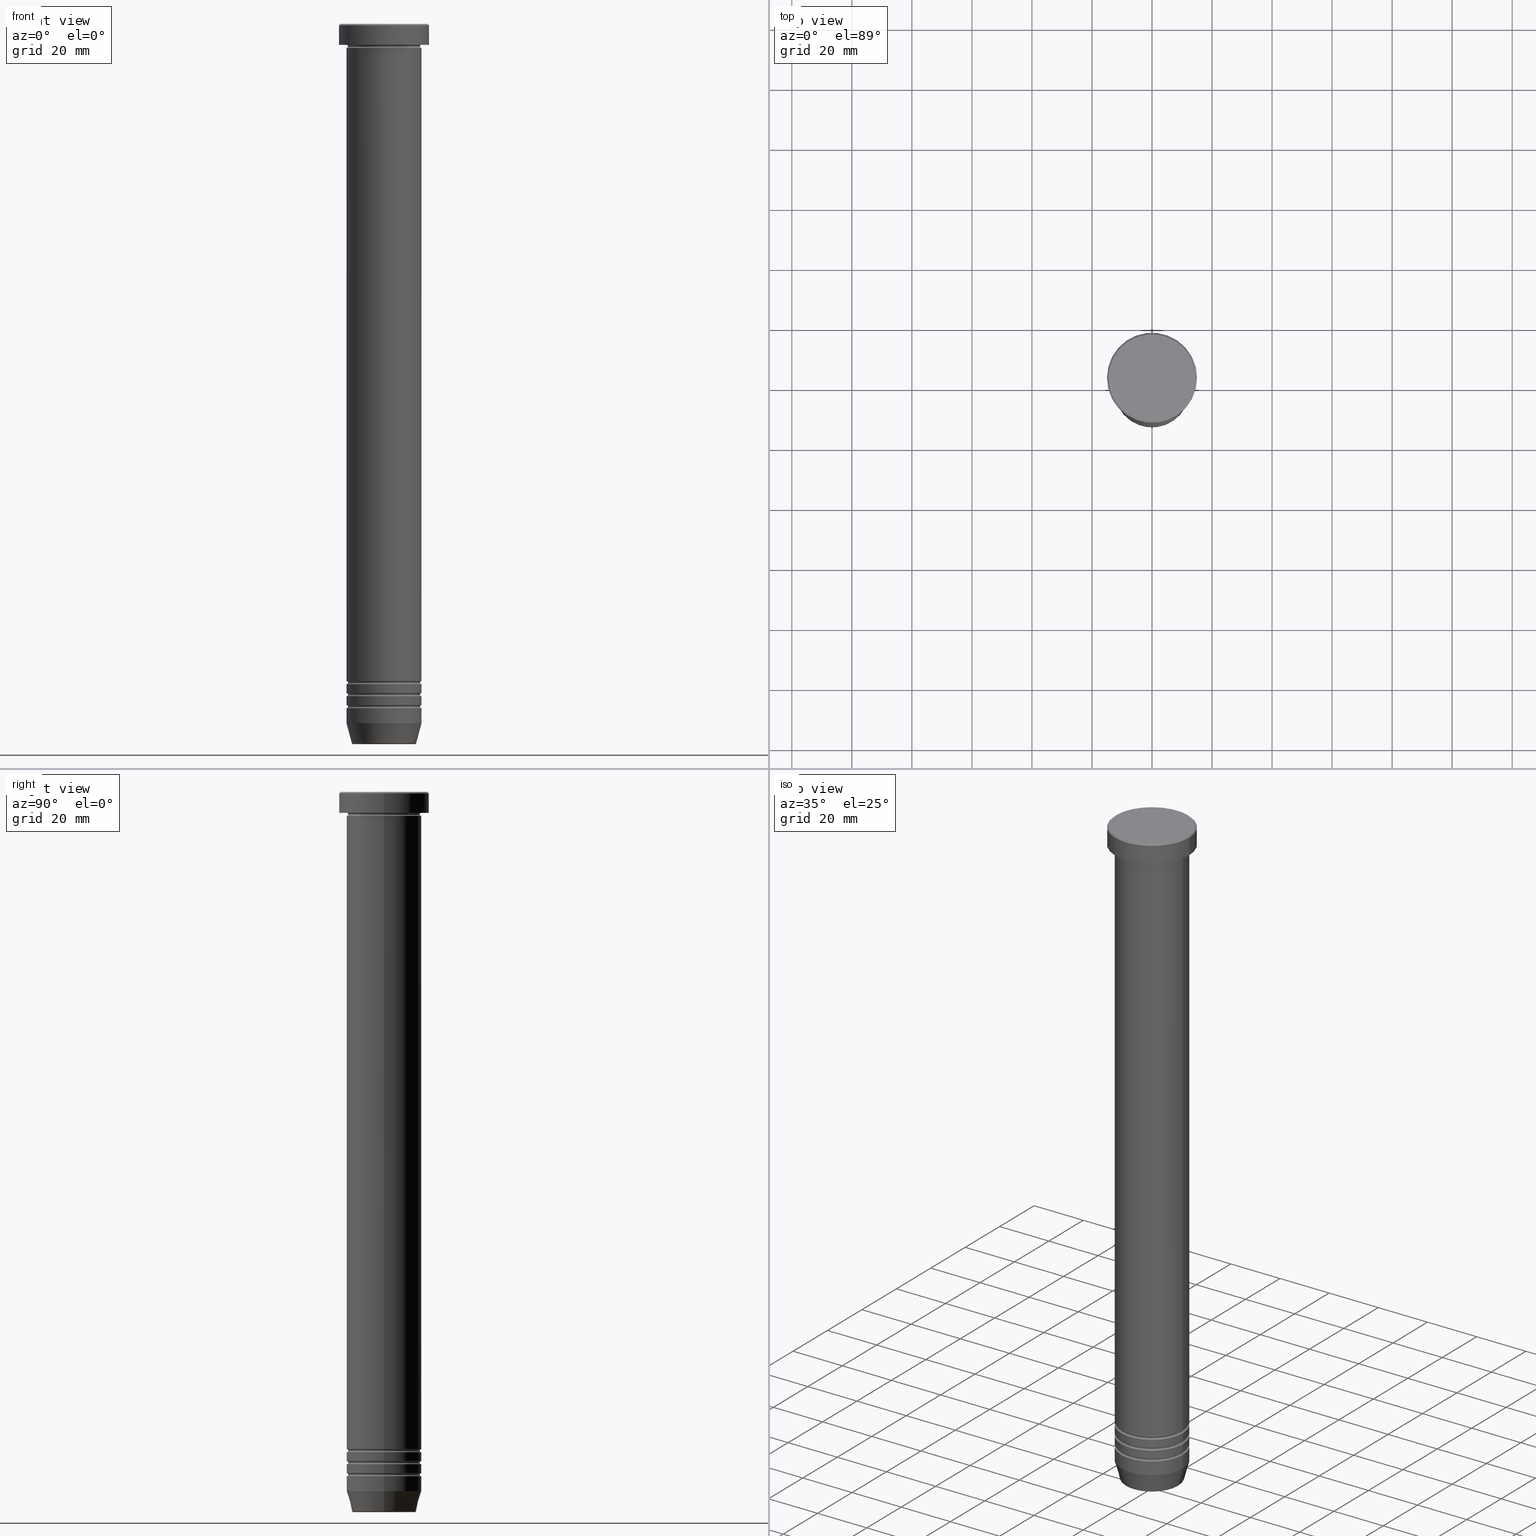
[diagram: canonical four-view strip — front | top / right | iso, engineering-drawing reading convention]
A machine part, canonical four-view strip (front | top / right | iso — engineering-drawing reading convention). The complete STEP part file that produces these views, byte-faithful:
ISO-10303-21;
HEADER;
FILE_DESCRIPTION (( 'STEP AP203' ),
    '1' );
FILE_NAME ('914f.STEP',
    '2024-01-02T20:25:04',
    ( '' ),
    ( '' ),
    'SwSTEP 2.0',
    'SolidWorks 2019',
    '' );
FILE_SCHEMA (( 'CONFIG_CONTROL_DESIGN' ));
ENDSEC;

DATA;
#1 = CARTESIAN_POINT ( 'NONE',  ( 12.50000000000000000, 1.530808498934191521E-15, -7.500000000000000000 ) ) ;
#2 = AXIS2_PLACEMENT_3D ( 'NONE', #549, #621, #57 ) ;
#3 = AXIS2_PLACEMENT_3D ( 'NONE', #498, #953, #688 ) ;
#4 = CARTESIAN_POINT ( 'NONE',  ( -10.24069215899264584, 1.283696036640840601E-15, -240.0000000000000568 ) ) ;
#5 = EDGE_LOOP ( 'NONE', ( #400, #497, #1053, #412 ) ) ;
#6 = AXIS2_PLACEMENT_3D ( 'NONE', #186, #20, #77 ) ;
#7 = EDGE_CURVE ( 'NONE', #340, #799, #920, .T. ) ;
#8 = CALENDAR_DATE ( 2024, 2, 1 ) ;
#9 = FACE_OUTER_BOUND ( 'NONE', #289, .T. ) ;
#10 = CARTESIAN_POINT ( 'NONE',  ( -12.50000000000000000, 1.530808498934191521E-15, -50.00000000000000000 ) ) ;
#11 = DIRECTION ( 'NONE',  ( 1.000000000000000000, 0.000000000000000000, 0.000000000000000000 ) ) ;
#12 = ADVANCED_FACE ( 'NONE', ( #573 ), #818, .F. ) ;
#13 = ORIENTED_EDGE ( 'NONE', *, *, #934, .T. ) ;
#14 = APPROVAL_DATE_TIME ( #184, #145 ) ;
#15 = DIRECTION ( 'NONE',  ( -0.000000000000000000, -0.000000000000000000, 1.000000000000000000 ) ) ;
#16 = CARTESIAN_POINT ( 'NONE',  ( 0.000000000000000000, 0.000000000000000000, -219.5000000000000284 ) ) ;
#17 = DIRECTION ( 'NONE',  ( 0.000000000000000000, 0.000000000000000000, -1.000000000000000000 ) ) ;
#18 = VERTEX_POINT ( 'NONE', #180 ) ;
#19 = SHAPE_DEFINITION_REPRESENTATION ( #622, #749 ) ;
#20 = DIRECTION ( 'NONE',  ( -0.000000000000000000, -0.000000000000000000, 1.000000000000000000 ) ) ;
#21 = ORIENTED_EDGE ( 'NONE', *, *, #999, .F. ) ;
#22 = AXIS2_PLACEMENT_3D ( 'NONE', #546, #535, #790 ) ;
#23 = DIRECTION ( 'NONE',  ( 1.000000000000000000, 0.000000000000000000, 0.000000000000000000 ) ) ;
#24 = CARTESIAN_POINT ( 'NONE',  ( -12.50000000000000000, 1.530808498934191521E-15, 0.000000000000000000 ) ) ;
#25 = CARTESIAN_POINT ( 'NONE',  ( 0.000000000000000000, 0.000000000000000000, -7.500000000000000000 ) ) ;
#26 = EDGE_LOOP ( 'NONE', ( #715, #794, #718, #21 ) ) ;
#27 = AXIS2_PLACEMENT_3D ( 'NONE', #395, #422, #821 ) ;
#28 = EDGE_CURVE ( 'NONE', #762, #898, #1014, .T. ) ;
#29 = DIRECTION ( 'NONE',  ( 1.000000000000000000, 0.000000000000000000, 0.000000000000000000 ) ) ;
#30 = DIRECTION ( 'NONE',  ( -0.000000000000000000, -0.000000000000000000, 1.000000000000000000 ) ) ;
#31 = ORIENTED_EDGE ( 'NONE', *, *, #464, .F. ) ;
#32 = AXIS2_PLACEMENT_3D ( 'NONE', #325, #643, #249 ) ;
#33 = DIRECTION ( 'NONE',  ( -0.000000000000000000, -1.000000000000000000, -0.000000000000000000 ) ) ;
#34 = CARTESIAN_POINT ( 'NONE',  ( 0.000000000000000000, 12.50000000000000000, -50.00000000000000000 ) ) ;
#35 = ORIENTED_EDGE ( 'NONE', *, *, #871, .T. ) ;
#36 = CARTESIAN_POINT ( 'NONE',  ( 12.50000000000000000, 0.000000000000000000, 0.000000000000000000 ) ) ;
#37 = DIRECTION ( 'NONE',  ( -0.000000000000000000, -0.000000000000000000, 1.000000000000000000 ) ) ;
#38 = ORIENTED_EDGE ( 'NONE', *, *, #791, .F. ) ;
#39 = ADVANCED_FACE ( 'NONE', ( #584 ), #944, .F. ) ;
#40 = CIRCLE ( 'NONE', #623, 0.5000000000000004441 ) ;
#41 = AXIS2_PLACEMENT_3D ( 'NONE', #814, #659, #29 ) ;
#42 = CARTESIAN_POINT ( 'NONE',  ( 0.000000000000000000, 0.000000000000000000, 0.000000000000000000 ) ) ;
#43 = CARTESIAN_POINT ( 'NONE',  ( 0.000000000000000000, 0.000000000000000000, -219.5000000000000284 ) ) ;
#44 = EDGE_CURVE ( 'NONE', #799, #446, #889, .T. ) ;
#45 = LINE ( 'NONE', #204, #307 ) ;
#46 = ORIENTED_EDGE ( 'NONE', *, *, #294, .T. ) ;
#47 = ORIENTED_EDGE ( 'NONE', *, *, #878, .T. ) ;
#48 = CARTESIAN_POINT ( 'NONE',  ( 12.00000000000000000, 0.000000000000000000, -7.500000000000000000 ) ) ;
#49 = DIRECTION ( 'NONE',  ( 1.000000000000000000, 0.000000000000000000, 0.000000000000000000 ) ) ;
#50 = CIRCLE ( 'NONE', #406, 12.49999999999999289 ) ;
#51 = AXIS2_PLACEMENT_3D ( 'NONE', #595, #449, #201 ) ;
#52 = CALENDAR_DATE ( 2024, 2, 1 ) ;
#53 = EDGE_CURVE ( 'NONE', #71, #906, #838, .T. ) ;
#54 = CARTESIAN_POINT ( 'NONE',  ( 12.50000000000000000, 0.000000000000000000, 0.000000000000000000 ) ) ;
#55 = APPROVAL_DATE_TIME ( #471, #389 ) ;
#56 = CARTESIAN_POINT ( 'NONE',  ( 0.000000000000000000, 0.000000000000000000, 0.000000000000000000 ) ) ;
#57 = DIRECTION ( 'NONE',  ( 1.000000000000000000, 0.000000000000000000, 0.000000000000000000 ) ) ;
#58 = CARTESIAN_POINT ( 'NONE',  ( 0.000000000000000000, 0.000000000000000000, 0.000000000000000000 ) ) ;
#59 = CARTESIAN_POINT ( 'NONE',  ( 0.000000000000000000, 0.000000000000000000, -233.0000000000000000 ) ) ;
#60 = VERTEX_POINT ( 'NONE', #824 ) ;
#61 = PERSON_AND_ORGANIZATION ( #846, #359 ) ;
#62 = FACE_OUTER_BOUND ( 'NONE', #869, .T. ) ;
#63 = CARTESIAN_POINT ( 'NONE',  ( 0.000000000000000000, 0.000000000000000000, -6.999999999999998224 ) ) ;
#64 = ORIENTED_EDGE ( 'NONE', *, *, #968, .F. ) ;
#65 = CARTESIAN_POINT ( 'NONE',  ( 0.000000000000000000, 0.000000000000000000, -50.00000000000000000 ) ) ;
#66 = CIRCLE ( 'NONE', #354, 0.5000000000000004441 ) ;
#67 = PERSON_AND_ORGANIZATION_ROLE ( 'design_owner' ) ;
#68 = VECTOR ( 'NONE', #553, 1000.000000000000114 ) ;
#69 = VECTOR ( 'NONE', #361, 1000.000000000000000 ) ;
#70 = FACE_OUTER_BOUND ( 'NONE', #781, .T. ) ;
#71 = VERTEX_POINT ( 'NONE', #419 ) ;
#72 = ORIENTED_EDGE ( 'NONE', *, *, #893, .F. ) ;
#73 = EDGE_CURVE ( 'NONE', #897, #927, #125, .T. ) ;
#74 = DIRECTION ( 'NONE',  ( -0.000000000000000000, -0.000000000000000000, 1.000000000000000000 ) ) ;
#75 = APPROVAL_ROLE ( '' ) ;
#76 = CARTESIAN_POINT ( 'NONE',  ( 10.62435565298212481, 0.000000000000000000, -240.0000000000000568 ) ) ;
#77 = DIRECTION ( 'NONE',  ( -1.000000000000000000, 0.000000000000000000, 0.000000000000000000 ) ) ;
#78 = CARTESIAN_POINT ( 'NONE',  ( -12.49999999999999645, 1.530808498934191127E-15, -227.5000000000000284 ) ) ;
#79 = ORIENTED_EDGE ( 'NONE', *, *, #315, .T. ) ;
#80 = PERSON_AND_ORGANIZATION ( #846, #359 ) ;
#81 = DIRECTION ( 'NONE',  ( -0.000000000000000000, -0.000000000000000000, 1.000000000000000000 ) ) ;
#82 = TOROIDAL_SURFACE ( 'NONE', #692, 10.24069215899264584, 0.5000000000000000000 ) ;
#83 = AXIS2_PLACEMENT_3D ( 'NONE', #331, #81, #888 ) ;
#84 = EDGE_CURVE ( 'NONE', #60, #777, #703, .T. ) ;
#85 = CARTESIAN_POINT ( 'NONE',  ( 10.72365507213717706, 0.000000000000000000, -239.6294095225513274 ) ) ;
#86 = AXIS2_PLACEMENT_3D ( 'NONE', #103, #565, #905 ) ;
#87 = ORIENTED_EDGE ( 'NONE', *, *, #941, .T. ) ;
#88 = DIRECTION ( 'NONE',  ( 0.000000000000000000, 0.000000000000000000, -1.000000000000000000 ) ) ;
#89 = APPROVAL_PERSON_ORGANIZATION ( #296, #605, #383 ) ;
#90 = DIRECTION ( 'NONE',  ( 0.000000000000000000, 0.000000000000000000, -1.000000000000000000 ) ) ;
#91 = EDGE_LOOP ( 'NONE', ( #732, #845, #848, #292 ) ) ;
#92 = CARTESIAN_POINT ( 'NONE',  ( 0.000000000000000000, 0.000000000000000000, -227.0000000000000284 ) ) ;
#93 = ORIENTED_EDGE ( 'NONE', *, *, #871, .F. ) ;
#94 = CARTESIAN_POINT ( 'NONE',  ( -12.50000000000000000, 1.530808498934191521E-15, 0.000000000000000000 ) ) ;
#95 = FACE_OUTER_BOUND ( 'NONE', #970, .T. ) ;
#96 = ORIENTED_EDGE ( 'NONE', *, *, #110, .T. ) ;
#97 = DATE_AND_TIME ( #164, #678 ) ;
#98 = DIRECTION ( 'NONE',  ( -0.000000000000000000, -0.000000000000000000, 1.000000000000000000 ) ) ;
#99 = CARTESIAN_POINT ( 'NONE',  ( 14.50000000000001066, 1.775737858763663593E-15, 0.000000000000000000 ) ) ;
#100 = CARTESIAN_POINT ( 'NONE',  ( -12.49999999999999645, 1.530808498934191127E-15, 0.000000000000000000 ) ) ;
#101 = ORIENTED_EDGE ( 'NONE', *, *, #657, .F. ) ;
#102 = DIRECTION ( 'NONE',  ( 0.000000000000000000, 0.000000000000000000, -1.000000000000000000 ) ) ;
#103 = CARTESIAN_POINT ( 'NONE',  ( 0.000000000000000000, 0.000000000000000000, -50.00000000000000000 ) ) ;
#104 = CARTESIAN_POINT ( 'NONE',  ( -12.49999999999999645, 1.530808498934191127E-15, -219.5000000000000284 ) ) ;
#105 = AXIS2_PLACEMENT_3D ( 'NONE', #1034, #784, #1039 ) ;
#106 = LINE ( 'NONE', #177, #192 ) ;
#107 = VECTOR ( 'NONE', #30, 1000.000000000000000 ) ;
#108 = EDGE_LOOP ( 'NONE', ( #233, #733, #860, #752 ) ) ;
#109 = CIRCLE ( 'NONE', #86, 12.50000000000000000 ) ;
#110 = EDGE_CURVE ( 'NONE', #60, #762, #255, .T. ) ;
#111 = CARTESIAN_POINT ( 'NONE',  ( 12.50000000000000000, 0.000000000000000000, -50.00000000000000000 ) ) ;
#112 = ORIENTED_EDGE ( 'NONE', *, *, #163, .F. ) ;
#113 = DIRECTION ( 'NONE',  ( -1.000000000000000000, 0.000000000000000000, 0.000000000000000000 ) ) ;
#114 = ORIENTED_EDGE ( 'NONE', *, *, #369, .T. ) ;
#115 = PRODUCT_RELATED_PRODUCT_CATEGORY ( 'detail', '', ( #124 ) ) ;
#116 = DIRECTION ( 'NONE',  ( -0.000000000000000000, -0.000000000000000000, 1.000000000000000000 ) ) ;
#117 = EDGE_LOOP ( 'NONE', ( #330, #789, #575, #662 ) ) ;
#118 = EDGE_CURVE ( 'NONE', #238, #333, #539, .T. ) ;
#119 = PLANE ( 'NONE',  #745 ) ;
#120 = ORIENTED_EDGE ( 'NONE', *, *, #458, .F. ) ;
#121 = CARTESIAN_POINT ( 'NONE',  ( 0.000000000000000000, 0.000000000000000000, -6.999999999999999112 ) ) ;
#122 = ADVANCED_FACE ( 'NONE', ( #895 ), #646, .T. ) ;
#123 = DIRECTION ( 'NONE',  ( 0.000000000000000000, 0.000000000000000000, -1.000000000000000000 ) ) ;
#124 = PRODUCT ( '914f', '914f', '', ( #867 ) ) ;
#125 = CIRCLE ( 'NONE', #593, 12.50000000000000000 ) ;
#126 = CIRCLE ( 'NONE', #159, 12.50000000000000000 ) ;
#127 = CIRCLE ( 'NONE', #526, 12.49999999999999289 ) ;
#128 = VERTEX_POINT ( 'NONE', #297 ) ;
#129 = DIRECTION ( 'NONE',  ( -0.000000000000000000, -0.000000000000000000, 1.000000000000000000 ) ) ;
#130 = DIRECTION ( 'NONE',  ( 1.000000000000000000, 0.000000000000000000, 0.000000000000000000 ) ) ;
#131 = DIRECTION ( 'NONE',  ( -1.000000000000000000, 1.224646799147353454E-16, 0.000000000000000000 ) ) ;
#132 = ORIENTED_EDGE ( 'NONE', *, *, #189, .F. ) ;
#133 = CIRCLE ( 'NONE', #793, 10.24069215899264584 ) ;
#134 = DIRECTION ( 'NONE',  ( -0.000000000000000000, -0.000000000000000000, 1.000000000000000000 ) ) ;
#135 = FACE_OUTER_BOUND ( 'NONE', #884, .T. ) ;
#136 = CYLINDRICAL_SURFACE ( 'NONE', #256, 12.50000000000000000 ) ;
#137 = CARTESIAN_POINT ( 'NONE',  ( 0.000000000000000000, 0.000000000000000000, -50.00000000000000000 ) ) ;
#138 = ADVANCED_FACE ( 'NONE', ( #62 ), #963, .T. ) ;
#139 = PERSON_AND_ORGANIZATION_ROLE ( 'creator' ) ;
#140 = FACE_OUTER_BOUND ( 'NONE', #108, .T. ) ;
#141 = TOROIDAL_SURFACE ( 'NONE', #476, 12.49999999999999645, 0.5000000000000000000 ) ;
#142 = CIRCLE ( 'NONE', #224, 12.50000000000000000 ) ;
#143 = ORIENTED_EDGE ( 'NONE', *, *, #984, .F. ) ;
#144 = CIRCLE ( 'NONE', #707, 0.5000000000000004441 ) ;
#145 = APPROVAL ( #401, 'NEUR�EN�' ) ;
#146 = DIRECTION ( 'NONE',  ( -0.000000000000000000, -0.000000000000000000, 1.000000000000000000 ) ) ;
#147 = COORDINATED_UNIVERSAL_TIME_OFFSET ( 1, 0, .AHEAD. ) ;
#148 = ADVANCED_FACE ( 'NONE', ( #552 ), #153, .T. ) ;
#149 = DIRECTION ( 'NONE',  ( 1.000000000000000000, 0.000000000000000000, 0.000000000000000000 ) ) ;
#150 = ORIENTED_EDGE ( 'NONE', *, *, #421, .F. ) ;
#151 = DIRECTION ( 'NONE',  ( 1.224646799147353207E-16, 1.000000000000000000, 0.000000000000000000 ) ) ;
#152 = PLANE ( 'NONE',  #409 ) ;
#153 = CYLINDRICAL_SURFACE ( 'NONE', #959, 12.49999999999999645 ) ;
#154 = DIRECTION ( 'NONE',  ( -0.000000000000000000, -0.000000000000000000, 1.000000000000000000 ) ) ;
#155 = ADVANCED_FACE ( 'NONE', ( #135 ), #319, .T. ) ;
#156 = VERTEX_POINT ( 'NONE', #425 ) ;
#157 = APPLICATION_CONTEXT ( 'configuration controlled 3d designs of mechanical parts and assemblies' ) ;
#158 = APPLICATION_PROTOCOL_DEFINITION ( 'international standard', 'config_control_design', 1994, #377 ) ;
#159 = AXIS2_PLACEMENT_3D ( 'NONE', #775, #37, #350 ) ;
#160 = AXIS2_PLACEMENT_3D ( 'NONE', #499, #33, #853 ) ;
#161 = DIRECTION ( 'NONE',  ( 1.000000000000000000, 0.000000000000000000, 0.000000000000000000 ) ) ;
#162 = ORIENTED_EDGE ( 'NONE', *, *, #716, .T. ) ;
#163 = EDGE_CURVE ( 'NONE', #739, #446, #690, .T. ) ;
#164 = CALENDAR_DATE ( 2024, 2, 1 ) ;
#165 = CARTESIAN_POINT ( 'NONE',  ( 0.000000000000000000, 0.000000000000000000, -50.00000000000000000 ) ) ;
#166 = ORIENTED_EDGE ( 'NONE', *, *, #118, .F. ) ;
#167 = ADVANCED_FACE ( 'NONE', ( #454 ), #240, .F. ) ;
#168 = DIRECTION ( 'NONE',  ( -0.000000000000000000, -0.000000000000000000, 1.000000000000000000 ) ) ;
#169 = CARTESIAN_POINT ( 'NONE',  ( 0.000000000000000000, 0.000000000000000000, -0.4999999999999831246 ) ) ;
#170 = DIRECTION ( 'NONE',  ( -1.000000000000000000, 0.000000000000000000, 0.000000000000000000 ) ) ;
#171 = ADVANCED_FACE ( 'NONE', ( #1030 ), #724, .T. ) ;
#172 = CIRCLE ( 'NONE', #765, 12.50000000000000000 ) ;
#173 = TOROIDAL_SURFACE ( 'NONE', #193, 12.49999999999999645, 0.5000000000000000000 ) ;
#174 = DIRECTION ( 'NONE',  ( 0.000000000000000000, -1.000000000000000000, 0.000000000000000000 ) ) ;
#175 = CIRCLE ( 'NONE', #803, 0.5000000000000004441 ) ;
#176 = ORIENTED_EDGE ( 'NONE', *, *, #861, .F. ) ;
#177 = CARTESIAN_POINT ( 'NONE',  ( -12.50000000000000000, 1.530808498934191521E-15, 0.000000000000000000 ) ) ;
#178 = CARTESIAN_POINT ( 'NONE',  ( 12.50000000000000000, 0.000000000000000000, 0.000000000000000000 ) ) ;
#179 = CARTESIAN_POINT ( 'NONE',  ( 0.000000000000000000, 0.000000000000000000, -223.5000000000000284 ) ) ;
#180 = CARTESIAN_POINT ( 'NONE',  ( 11.99999999999999645, 0.000000000000000000, -219.5000000000000284 ) ) ;
#181 = CIRCLE ( 'NONE', #345, 14.50000000000001066 ) ;
#182 = EDGE_LOOP ( 'NONE', ( #708, #363, #438, #518 ) ) ;
#183 = DIRECTION ( 'NONE',  ( 1.000000000000000000, 0.000000000000000000, 0.000000000000000000 ) ) ;
#184 = DATE_AND_TIME ( #8, #612 ) ;
#185 = CARTESIAN_POINT ( 'NONE',  ( 12.49999999999999645, 1.530808498934191127E-15, -219.5000000000000284 ) ) ;
#186 = CARTESIAN_POINT ( 'NONE',  ( 0.000000000000000000, 0.000000000000000000, -6.999999999999999112 ) ) ;
#187 = CARTESIAN_POINT ( 'NONE',  ( -12.50000000000000000, 1.530808498934191521E-15, -220.0000000000000284 ) ) ;
#188 = CARTESIAN_POINT ( 'NONE',  ( 0.000000000000000000, 0.000000000000000000, -7.500000000000000000 ) ) ;
#189 = EDGE_CURVE ( 'NONE', #1027, #897, #374, .T. ) ;
#190 = ORIENTED_EDGE ( 'NONE', *, *, #681, .T. ) ;
#191 = FACE_OUTER_BOUND ( 'NONE', #217, .T. ) ;
#192 = VECTOR ( 'NONE', #730, 1000.000000000000000 ) ;
#193 = AXIS2_PLACEMENT_3D ( 'NONE', #916, #903, #11 ) ;
#194 = CARTESIAN_POINT ( 'NONE',  ( 12.49999999999999645, 0.000000000000000000, -227.5000000000000284 ) ) ;
#195 = CIRCLE ( 'NONE', #207, 12.00000000000000000 ) ;
#196 = SECURITY_CLASSIFICATION ( '', '', #962 ) ;
#197 = DIRECTION ( 'NONE',  ( 0.000000000000000000, 0.000000000000000000, -1.000000000000000000 ) ) ;
#198 = ORIENTED_EDGE ( 'NONE', *, *, #28, .T. ) ;
#199 = CARTESIAN_POINT ( 'NONE',  ( 0.000000000000000000, 0.000000000000000000, 0.000000000000000000 ) ) ;
#200 = ADVANCED_FACE ( 'NONE', ( #866 ), #213, .F. ) ;
#201 = DIRECTION ( 'NONE',  ( 1.000000000000000000, 0.000000000000000000, 0.000000000000000000 ) ) ;
#202 = DIRECTION ( 'NONE',  ( -0.000000000000000000, -0.000000000000000000, 1.000000000000000000 ) ) ;
#203 = ORIENTED_EDGE ( 'NONE', *, *, #635, .F. ) ;
#204 = CARTESIAN_POINT ( 'NONE',  ( -12.49999999999999645, 1.530808498934191127E-15, 0.000000000000000000 ) ) ;
#205 = CARTESIAN_POINT ( 'NONE',  ( -11.99999999999999645, 1.500192328955507143E-15, -219.5000000000000284 ) ) ;
#206 = TOROIDAL_SURFACE ( 'NONE', #855, 12.49999999999999645, 0.5000000000000000000 ) ;
#207 = AXIS2_PLACEMENT_3D ( 'NONE', #833, #15, #981 ) ;
#208 = AXIS2_PLACEMENT_3D ( 'NONE', #807, #887, #1038 ) ;
#209 = CARTESIAN_POINT ( 'NONE',  ( 15.00000000000000000, 0.000000000000000000, -6.999999999999998224 ) ) ;
#210 = FACE_OUTER_BOUND ( 'NONE', #343, .T. ) ;
#211 = DIRECTION ( 'NONE',  ( -0.000000000000000000, -0.000000000000000000, 1.000000000000000000 ) ) ;
#212 = EDGE_CURVE ( 'NONE', #405, #713, #521, .T. ) ;
#213 = PLANE ( 'NONE',  #973 ) ;
#214 = AXIS2_PLACEMENT_3D ( 'NONE', #104, #151, #1028 ) ;
#215 = CALENDAR_DATE ( 2024, 2, 1 ) ;
#216 = CARTESIAN_POINT ( 'NONE',  ( 0.000000000000000000, 0.000000000000000000, -223.5000000000000284 ) ) ;
#217 = EDGE_LOOP ( 'NONE', ( #452, #886, #35, #382 ) ) ;
#218 = CC_DESIGN_DATE_AND_TIME_ASSIGNMENT ( #378, #467, ( #542 ) ) ;
#219 = DIRECTION ( 'NONE',  ( 0.000000000000000000, 0.000000000000000000, -1.000000000000000000 ) ) ;
#220 = DIRECTION ( 'NONE',  ( 1.000000000000000000, 0.000000000000000000, 0.000000000000000000 ) ) ;
#221 = CARTESIAN_POINT ( 'NONE',  ( 0.000000000000000000, 0.000000000000000000, -7.500000000000000000 ) ) ;
#222 = ORIENTED_EDGE ( 'NONE', *, *, #644, .F. ) ;
#223 = AXIS2_PLACEMENT_3D ( 'NONE', #235, #890, #384 ) ;
#224 = AXIS2_PLACEMENT_3D ( 'NONE', #481, #314, #813 ) ;
#225 = AXIS2_PLACEMENT_3D ( 'NONE', #581, #665, #722 ) ;
#226 = CIRCLE ( 'NONE', #214, 0.5000000000000004441 ) ;
#227 = EDGE_CURVE ( 'NONE', #285, #399, #142, .T. ) ;
#228 = DIRECTION ( 'NONE',  ( 1.000000000000000000, 0.000000000000000000, 0.000000000000000000 ) ) ;
#229 = DIRECTION ( 'NONE',  ( -0.000000000000000000, -0.000000000000000000, 1.000000000000000000 ) ) ;
#230 = ORIENTED_EDGE ( 'NONE', *, *, #299, .F. ) ;
#231 = ADVANCED_FACE ( 'NONE', ( #1003 ), #624, .F. ) ;
#232 = DIRECTION ( 'NONE',  ( 1.000000000000000000, 0.000000000000000000, 0.000000000000000000 ) ) ;
#233 = ORIENTED_EDGE ( 'NONE', *, *, #601, .F. ) ;
#234 = DIRECTION ( 'NONE',  ( 1.000000000000000000, 0.000000000000000000, 0.000000000000000000 ) ) ;
#235 = CARTESIAN_POINT ( 'NONE',  ( 0.000000000000000000, 0.000000000000000000, -239.6294095225513274 ) ) ;
#236 = EDGE_CURVE ( 'NONE', #285, #18, #66, .T. ) ;
#237 = EDGE_LOOP ( 'NONE', ( #64, #1001, #469, #668 ) ) ;
#238 = VERTEX_POINT ( 'NONE', #209 ) ;
#239 = AXIS2_PLACEMENT_3D ( 'NONE', #1045, #242, #398 ) ;
#240 = TOROIDAL_SURFACE ( 'NONE', #3, 12.49999999999999645, 0.5000000000000000000 ) ;
#241 = AXIS2_PLACEMENT_3D ( 'NONE', #194, #509, #445 ) ;
#242 = DIRECTION ( 'NONE',  ( -0.000000000000000000, -0.000000000000000000, 1.000000000000000000 ) ) ;
#243 = CC_DESIGN_APPROVAL ( #389, ( #542 ) ) ;
#244 = VERTEX_POINT ( 'NONE', #645 ) ;
#245 = EDGE_CURVE ( 'NONE', #340, #937, #492, .T. ) ;
#246 = CARTESIAN_POINT ( 'NONE',  ( 12.50000000000000000, 0.000000000000000000, -224.0000000000000284 ) ) ;
#247 = VERTEX_POINT ( 'NONE', #1047 ) ;
#248 = ORIENTED_EDGE ( 'NONE', *, *, #110, .F. ) ;
#249 = DIRECTION ( 'NONE',  ( 1.000000000000000000, 0.000000000000000000, 0.000000000000000000 ) ) ;
#250 = CC_DESIGN_PERSON_AND_ORGANIZATION_ASSIGNMENT ( #545, #980, ( #196 ) ) ;
#251 = DIRECTION ( 'NONE',  ( -1.000000000000000000, 1.224646799147353454E-16, 0.000000000000000000 ) ) ;
#252 = CARTESIAN_POINT ( 'NONE',  ( 0.000000000000000000, 0.000000000000000000, 0.000000000000000000 ) ) ;
#253 = DIRECTION ( 'NONE',  ( -1.000000000000000000, -1.224646799147353454E-16, 0.000000000000000000 ) ) ;
#254 = ORIENTED_EDGE ( 'NONE', *, *, #865, .F. ) ;
#255 = CIRCLE ( 'NONE', #304, 0.5000000000000004441 ) ;
#256 = AXIS2_PLACEMENT_3D ( 'NONE', #693, #281, #868 ) ;
#257 = DIRECTION ( 'NONE',  ( -1.000000000000000000, -1.224646799147353454E-16, 0.000000000000000000 ) ) ;
#258 = CIRCLE ( 'NONE', #6, 12.50000000000000000 ) ;
#259 = DIRECTION ( 'NONE',  ( 1.000000000000000000, 0.000000000000000000, 0.000000000000000000 ) ) ;
#260 = ORIENTED_EDGE ( 'NONE', *, *, #806, .T. ) ;
#261 = DIRECTION ( 'NONE',  ( 0.000000000000000000, 0.000000000000000000, -1.000000000000000000 ) ) ;
#262 = ADVANCED_FACE ( 'NONE', ( #978 ), #173, .F. ) ;
#263 = DIRECTION ( 'NONE',  ( 1.000000000000000000, 0.000000000000000000, 0.000000000000000000 ) ) ;
#264 = ORIENTED_EDGE ( 'NONE', *, *, #84, .F. ) ;
#265 = DIRECTION ( 'NONE',  ( -0.000000000000000000, -0.000000000000000000, 1.000000000000000000 ) ) ;
#266 = DIRECTION ( 'NONE',  ( -0.000000000000000000, -0.000000000000000000, 1.000000000000000000 ) ) ;
#267 = MANIFOLD_SOLID_BREP ( 'Zaoblit5', #555 ) ;
#268 = PLANE ( 'NONE',  #225 ) ;
#269 = VERTEX_POINT ( 'NONE', #574 ) ;
#270 = ADVANCED_FACE ( 'NONE', ( #95 ), #275, .F. ) ;
#271 = DIRECTION ( 'NONE',  ( 1.000000000000000000, 0.000000000000000000, 0.000000000000000000 ) ) ;
#272 = ORIENTED_EDGE ( 'NONE', *, *, #464, .T. ) ;
#273 = DIRECTION ( 'NONE',  ( -0.000000000000000000, -0.000000000000000000, 1.000000000000000000 ) ) ;
#274 = CIRCLE ( 'NONE', #2, 12.49999999999999822 ) ;
#275 = TOROIDAL_SURFACE ( 'NONE', #875, 12.50000000000000000, 0.5000000000000000000 ) ;
#276 = CARTESIAN_POINT ( 'NONE',  ( 12.49999999999999822, 0.000000000000000000, -223.0000000000000000 ) ) ;
#277 = VECTOR ( 'NONE', #168, 1000.000000000000000 ) ;
#278 = EDGE_LOOP ( 'NONE', ( #755, #670, #480, #433 ) ) ;
#279 = EDGE_CURVE ( 'NONE', #238, #531, #356, .T. ) ;
#280 = FACE_OUTER_BOUND ( 'NONE', #737, .T. ) ;
#281 = DIRECTION ( 'NONE',  ( -0.000000000000000000, -0.000000000000000000, 1.000000000000000000 ) ) ;
#282 = DIRECTION ( 'NONE',  ( 1.000000000000000000, 0.000000000000000000, 0.000000000000000000 ) ) ;
#283 = ORIENTED_EDGE ( 'NONE', *, *, #929, .T. ) ;
#284 = DIRECTION ( 'NONE',  ( -1.000000000000000000, 0.000000000000000000, 0.000000000000000000 ) ) ;
#285 = VERTEX_POINT ( 'NONE', #1050 ) ;
#286 = CARTESIAN_POINT ( 'NONE',  ( 0.000000000000000000, 0.000000000000000000, -227.5000000000000284 ) ) ;
#287 = EDGE_CURVE ( 'NONE', #333, #269, #558, .T. ) ;
#288 = DIRECTION ( 'NONE',  ( 1.000000000000000000, 0.000000000000000000, 0.000000000000000000 ) ) ;
#289 = EDGE_LOOP ( 'NONE', ( #176, #519, #93, #743 ) ) ;
#290 = AXIS2_PLACEMENT_3D ( 'NONE', #613, #98, #682 ) ;
#291 = AXIS2_PLACEMENT_3D ( 'NONE', #964, #955, #232 ) ;
#292 = ORIENTED_EDGE ( 'NONE', *, *, #756, .F. ) ;
#293 = DIRECTION ( 'NONE',  ( -1.000000000000000000, 0.000000000000000000, 0.000000000000000000 ) ) ;
#294 = EDGE_CURVE ( 'NONE', #1027, #244, #302, .T. ) ;
#295 = DIRECTION ( 'NONE',  ( 0.000000000000000000, 0.000000000000000000, -1.000000000000000000 ) ) ;
#296 = PERSON_AND_ORGANIZATION ( #846, #359 ) ;
#297 = CARTESIAN_POINT ( 'NONE',  ( -12.50000000000000000, 0.000000000000000000, -6.999999999999999112 ) ) ;
#298 = CARTESIAN_POINT ( 'NONE',  ( 0.000000000000000000, 0.000000000000000000, -220.0000000000000284 ) ) ;
#299 = EDGE_CURVE ( 'NONE', #390, #567, #226, .T. ) ;
#300 = DATE_AND_TIME ( #881, #820 ) ;
#301 = CARTESIAN_POINT ( 'NONE',  ( -12.49999999999999645, 1.530808498934191127E-15, -223.5000000000000284 ) ) ;
#302 = CIRCLE ( 'NONE', #907, 0.5000000000000004441 ) ;
#303 = AXIS2_PLACEMENT_3D ( 'NONE', #628, #146, #796 ) ;
#304 = AXIS2_PLACEMENT_3D ( 'NONE', #832, #720, #261 ) ;
#305 = DIRECTION ( 'NONE',  ( 0.000000000000000000, -1.000000000000000000, 0.000000000000000000 ) ) ;
#306 = ADVANCED_FACE ( 'NONE', ( #844 ), #734, .T. ) ;
#307 = VECTOR ( 'NONE', #684, 1000.000000000000000 ) ;
#308 = DIRECTION ( 'NONE',  ( -0.000000000000000000, -0.000000000000000000, 1.000000000000000000 ) ) ;
#309 = DIRECTION ( 'NONE',  ( -0.000000000000000000, -0.000000000000000000, 1.000000000000000000 ) ) ;
#310 = ORIENTED_EDGE ( 'NONE', *, *, #548, .F. ) ;
#311 = AXIS2_PLACEMENT_3D ( 'NONE', #648, #588, #835 ) ;
#312 = DIRECTION ( 'NONE',  ( 1.000000000000000000, 0.000000000000000000, 0.000000000000000000 ) ) ;
#313 = ORIENTED_EDGE ( 'NONE', *, *, #365, .T. ) ;
#314 = DIRECTION ( 'NONE',  ( -0.000000000000000000, -0.000000000000000000, 1.000000000000000000 ) ) ;
#315 = EDGE_CURVE ( 'NONE', #269, #531, #483, .T. ) ;
#316 = CYLINDRICAL_SURFACE ( 'NONE', #748, 12.50000000000000000 ) ;
#317 = ORIENTED_EDGE ( 'NONE', *, *, #299, .T. ) ;
#318 = EDGE_LOOP ( 'NONE', ( #933, #417, #472, #1061 ) ) ;
#319 = PLANE ( 'NONE',  #744 ) ;
#320 = AXIS2_PLACEMENT_3D ( 'NONE', #787, #969, #312 ) ;
#321 = TOROIDAL_SURFACE ( 'NONE', #41, 12.49999999999999645, 0.5000000000000000000 ) ;
#322 = APPROVAL_PERSON_ORGANIZATION ( #783, #389, #75 ) ;
#323 = DIRECTION ( 'NONE',  ( 0.000000000000000000, 0.000000000000000000, -1.000000000000000000 ) ) ;
#324 = ORIENTED_EDGE ( 'NONE', *, *, #976, .T. ) ;
#325 = CARTESIAN_POINT ( 'NONE',  ( 0.000000000000000000, 0.000000000000000000, -7.500000000000000000 ) ) ;
#326 = COORDINATED_UNIVERSAL_TIME_OFFSET ( 1, 0, .AHEAD. ) ;
#327 = CARTESIAN_POINT ( 'NONE',  ( 0.000000000000000000, 0.000000000000000000, -227.5000000000000284 ) ) ;
#328 = LINE ( 'NONE', #94, #107 ) ;
#329 = DIRECTION ( 'NONE',  ( -0.000000000000000000, -1.000000000000000000, -0.000000000000000000 ) ) ;
#330 = ORIENTED_EDGE ( 'NONE', *, *, #631, .F. ) ;
#331 = CARTESIAN_POINT ( 'NONE',  ( 0.000000000000000000, 0.000000000000000000, -6.999999999999998224 ) ) ;
#332 = DIRECTION ( 'NONE',  ( 1.000000000000000000, 0.000000000000000000, 0.000000000000000000 ) ) ;
#333 = VERTEX_POINT ( 'NONE', #1006 ) ;
#334 = CARTESIAN_POINT ( 'NONE',  ( 0.000000000000000000, 0.000000000000000000, 0.000000000000000000 ) ) ;
#335 = ORIENTED_EDGE ( 'NONE', *, *, #482, .F. ) ;
#336 = EDGE_CURVE ( 'NONE', #413, #156, #181, .T. ) ;
#337 = DATE_TIME_ROLE ( 'classification_date' ) ;
#338 = AXIS2_PLACEMENT_3D ( 'NONE', #334, #753, #823 ) ;
#339 = LINE ( 'NONE', #99, #611 ) ;
#340 = VERTEX_POINT ( 'NONE', #572 ) ;
#341 = CONICAL_SURFACE ( 'NONE', #694, 10.62435565298212481, 0.2617993877991502960 ) ;
#342 = ORIENTED_EDGE ( 'NONE', *, *, #227, .T. ) ;
#343 = EDGE_LOOP ( 'NONE', ( #198, #989, #444, #655 ) ) ;
#344 = LINE ( 'NONE', #178, #277 ) ;
#345 = AXIS2_PLACEMENT_3D ( 'NONE', #437, #994, #259 ) ;
#346 = CARTESIAN_POINT ( 'NONE',  ( -12.49999999999999289, 1.530808498934190930E-15, -219.0000000000000284 ) ) ;
#347 = ORIENTED_EDGE ( 'NONE', *, *, #315, .F. ) ;
#348 = CARTESIAN_POINT ( 'NONE',  ( 0.000000000000000000, 0.000000000000000000, -7.500000000000000000 ) ) ;
#349 = EDGE_CURVE ( 'NONE', #661, #585, #436, .T. ) ;
#350 = DIRECTION ( 'NONE',  ( 1.000000000000000000, 0.000000000000000000, 0.000000000000000000 ) ) ;
#351 = EDGE_LOOP ( 'NONE', ( #1041, #680, #600, #847 ) ) ;
#352 = CYLINDRICAL_SURFACE ( 'NONE', #930, 12.49999999999999645 ) ;
#353 = AXIS2_PLACEMENT_3D ( 'NONE', #221, #697, #468 ) ;
#354 = AXIS2_PLACEMENT_3D ( 'NONE', #185, #507, #842 ) ;
#355 = FACE_OUTER_BOUND ( 'NONE', #834, .T. ) ;
#356 = LINE ( 'NONE', #831, #766 ) ;
#357 = CIRCLE ( 'NONE', #430, 11.99999999999999645 ) ;
#358 = ORIENTED_EDGE ( 'NONE', *, *, #806, .F. ) ;
#359 = ORGANIZATION ( 'NEUR�EN�', 'NEUR�EN�', '' ) ;
#360 = ORIENTED_EDGE ( 'NONE', *, *, #681, .F. ) ;
#361 = DIRECTION ( 'NONE',  ( -0.000000000000000000, -0.000000000000000000, 1.000000000000000000 ) ) ;
#362 = ORIENTED_EDGE ( 'NONE', *, *, #365, .F. ) ;
#363 = ORIENTED_EDGE ( 'NONE', *, *, #245, .T. ) ;
#364 = DIRECTION ( 'NONE',  ( 1.000000000000000000, 0.000000000000000000, 0.000000000000000000 ) ) ;
#365 = EDGE_CURVE ( 'NONE', #777, #60, #133, .T. ) ;
#366 = CARTESIAN_POINT ( 'NONE',  ( -12.49999999999999645, 0.000000000000000000, -219.5000000000000284 ) ) ;
#367 = DIRECTION ( 'NONE',  ( -1.000000000000000000, -1.224646799147353454E-16, 0.000000000000000000 ) ) ;
#368 = EDGE_LOOP ( 'NONE', ( #880, #776, #79, #852 ) ) ;
#369 = EDGE_CURVE ( 'NONE', #479, #247, #415, .T. ) ;
#370 = DIRECTION ( 'NONE',  ( 1.000000000000000000, 0.000000000000000000, 0.000000000000000000 ) ) ;
#371 = CARTESIAN_POINT ( 'NONE',  ( 0.000000000000000000, 0.000000000000000000, -219.5000000000000284 ) ) ;
#372 = EDGE_LOOP ( 'NONE', ( #112, #811, #396, #804 ) ) ;
#373 = TOROIDAL_SURFACE ( 'NONE', #637, 12.49999999999999645, 0.5000000000000000000 ) ;
#374 = CIRCLE ( 'NONE', #428, 0.5000000000000004441 ) ;
#375 = TOROIDAL_SURFACE ( 'NONE', #393, 12.49999999999999645, 0.5000000000000000000 ) ;
#376 = CIRCLE ( 'NONE', #493, 11.99999999999999645 ) ;
#377 = APPLICATION_CONTEXT ( 'configuration controlled 3d designs of mechanical parts and assemblies' ) ;
#378 = DATE_AND_TIME ( #52, #769 ) ;
#379 = ADVANCED_FACE ( 'NONE', ( #982 ), #381, .F. ) ;
#380 = CARTESIAN_POINT ( 'NONE',  ( 12.49999999999999645, 0.000000000000000000, -219.5000000000000284 ) ) ;
#381 = TOROIDAL_SURFACE ( 'NONE', #32, 12.50000000000000000, 0.5000000000000000000 ) ;
#382 = ORIENTED_EDGE ( 'NONE', *, *, #44, .F. ) ;
#383 = APPROVAL_ROLE ( '' ) ;
#384 = DIRECTION ( 'NONE',  ( -1.000000000000000000, 0.000000000000000000, 0.000000000000000000 ) ) ;
#385 = EDGE_CURVE ( 'NONE', #413, #269, #651, .T. ) ;
#386 = PERSON_AND_ORGANIZATION_ROLE ( 'creator' ) ;
#387 = DIRECTION ( 'NONE',  ( 0.000000000000000000, -1.000000000000000000, 0.000000000000000000 ) ) ;
#388 = EDGE_LOOP ( 'NONE', ( #166, #805 ) ) ;
#389 = APPROVAL ( #954, 'NEUR�EN�' ) ;
#390 = VERTEX_POINT ( 'NONE', #346 ) ;
#391 = CIRCLE ( 'NONE', #556, 11.99999999999999645 ) ;
#392 = CIRCLE ( 'NONE', #160, 0.5000000000000004441 ) ;
#393 = AXIS2_PLACEMENT_3D ( 'NONE', #630, #551, #695 ) ;
#394 =( NAMED_UNIT ( * ) SI_UNIT ( $, .STERADIAN. ) SOLID_ANGLE_UNIT ( ) );
#395 = CARTESIAN_POINT ( 'NONE',  ( 0.000000000000000000, 0.000000000000000000, -8.000000000000000000 ) ) ;
#396 = ORIENTED_EDGE ( 'NONE', *, *, #474, .T. ) ;
#397 = FACE_OUTER_BOUND ( 'NONE', #990, .T. ) ;
#398 = DIRECTION ( 'NONE',  ( 1.000000000000000000, 0.000000000000000000, 0.000000000000000000 ) ) ;
#399 = VERTEX_POINT ( 'NONE', #187 ) ;
#400 = ORIENTED_EDGE ( 'NONE', *, *, #287, .F. ) ;
#401 = APPROVAL_STATUS ( 'not_yet_approved' ) ;
#402 = DIRECTION ( 'NONE',  ( 1.224646799147353207E-16, 1.000000000000000000, 0.000000000000000000 ) ) ;
#403 = EDGE_LOOP ( 'NONE', ( #283, #404 ) ) ;
#404 = ORIENTED_EDGE ( 'NONE', *, *, #797, .T. ) ;
#405 = VERTEX_POINT ( 'NONE', #583 ) ;
#406 = AXIS2_PLACEMENT_3D ( 'NONE', #459, #154, #792 ) ;
#407 = AXIS2_PLACEMENT_3D ( 'NONE', #59, #74, #971 ) ;
#408 = AXIS2_PLACEMENT_3D ( 'NONE', #165, #578, #488 ) ;
#409 = AXIS2_PLACEMENT_3D ( 'NONE', #957, #1057, #228 ) ;
#410 = FACE_OUTER_BOUND ( 'NONE', #318, .T. ) ;
#411 = CARTESIAN_POINT ( 'NONE',  ( -11.99999999999999645, 1.500192328955507143E-15, -227.5000000000000284 ) ) ;
#412 = ORIENTED_EDGE ( 'NONE', *, *, #829, .T. ) ;
#413 = VERTEX_POINT ( 'NONE', #738 ) ;
#414 = APPROVAL_ROLE ( '' ) ;
#415 = CIRCLE ( 'NONE', #311, 11.99999999999999645 ) ;
#416 = FACE_OUTER_BOUND ( 'NONE', #388, .T. ) ;
#417 = ORIENTED_EDGE ( 'NONE', *, *, #336, .F. ) ;
#418 = CARTESIAN_POINT ( 'NONE',  ( -14.50000000000001066, 0.000000000000000000, 0.000000000000000000 ) ) ;
#419 = CARTESIAN_POINT ( 'NONE',  ( 12.50000000000000000, 0.000000000000000000, -228.0000000000000000 ) ) ;
#420 = DIRECTION ( 'NONE',  ( -1.224646799147353207E-16, 1.000000000000000000, 0.000000000000000000 ) ) ;
#421 = EDGE_CURVE ( 'NONE', #156, #413, #564, .T. ) ;
#422 = DIRECTION ( 'NONE',  ( -0.000000000000000000, -0.000000000000000000, 1.000000000000000000 ) ) ;
#423 = DIRECTION ( 'NONE',  ( 0.000000000000000000, 0.000000000000000000, -1.000000000000000000 ) ) ;
#424 = ORIENTED_EDGE ( 'NONE', *, *, #516, .T. ) ;
#425 = CARTESIAN_POINT ( 'NONE',  ( 14.50000000000001066, 1.806354028742346591E-15, 0.000000000000000000 ) ) ;
#426 = CC_DESIGN_PERSON_AND_ORGANIZATION_ASSIGNMENT ( #702, #1048, ( #596 ) ) ;
#427 = ADVANCED_FACE ( 'NONE', ( #915 ), #1020, .F. ) ;
#428 = AXIS2_PLACEMENT_3D ( 'NONE', #747, #305, #219 ) ;
#429 = CIRCLE ( 'NONE', #1032, 12.50000000000000000 ) ;
#430 = AXIS2_PLACEMENT_3D ( 'NONE', #327, #647, #263 ) ;
#431 = DIRECTION ( 'NONE',  ( -1.000000000000000000, 0.000000000000000000, 0.000000000000000000 ) ) ;
#432 = CC_DESIGN_SECURITY_CLASSIFICATION ( #196, ( #596 ) ) ;
#433 = ORIENTED_EDGE ( 'NONE', *, *, #941, .F. ) ;
#434 = ADVANCED_FACE ( 'NONE', ( #503 ), #206, .F. ) ;
#435 = CYLINDRICAL_SURFACE ( 'NONE', #1051, 12.50000000000000000 ) ;
#436 = CIRCLE ( 'NONE', #774, 12.49999999999999822 ) ;
#437 = CARTESIAN_POINT ( 'NONE',  ( 0.000000000000000000, 0.000000000000000000, 0.000000000000000000 ) ) ;
#438 = ORIENTED_EDGE ( 'NONE', *, *, #865, .T. ) ;
#439 = CARTESIAN_POINT ( 'NONE',  ( -12.50000000000000000, 1.530808498934191521E-15, -8.000000000000000000 ) ) ;
#440 = LINE ( 'NONE', #859, #1013 ) ;
#441 = EDGE_LOOP ( 'NONE', ( #706, #264, #96, #457 ) ) ;
#442 = CARTESIAN_POINT ( 'NONE',  ( 0.000000000000000000, 0.000000000000000000, 0.000000000000000000 ) ) ;
#443 = AXIS2_PLACEMENT_3D ( 'NONE', #490, #266, #828 ) ;
#444 = ORIENTED_EDGE ( 'NONE', *, *, #487, .F. ) ;
#445 = DIRECTION ( 'NONE',  ( 0.000000000000000000, 0.000000000000000000, -1.000000000000000000 ) ) ;
#446 = VERTEX_POINT ( 'NONE', #411 ) ;
#447 = EDGE_CURVE ( 'NONE', #470, #927, #106, .T. ) ;
#448 = APPROVAL_PERSON_ORGANIZATION ( #80, #145, #414 ) ;
#449 = DIRECTION ( 'NONE',  ( -0.000000000000000000, -0.000000000000000000, 1.000000000000000000 ) ) ;
#450 = CARTESIAN_POINT ( 'NONE',  ( 0.000000000000000000, 0.000000000000000000, -233.0000000000000000 ) ) ;
#451 = DIRECTION ( 'NONE',  ( 1.000000000000000000, 0.000000000000000000, 0.000000000000000000 ) ) ;
#452 = ORIENTED_EDGE ( 'NONE', *, *, #691, .T. ) ;
#453 = ADVANCED_FACE ( 'NONE', ( #496 ), #667, .T. ) ;
#454 = FACE_OUTER_BOUND ( 'NONE', #372, .T. ) ;
#455 = ORIENTED_EDGE ( 'NONE', *, *, #756, .T. ) ;
#456 = DIRECTION ( 'NONE',  ( 1.000000000000000000, 0.000000000000000000, 0.000000000000000000 ) ) ;
#457 = ORIENTED_EDGE ( 'NONE', *, *, #673, .F. ) ;
#458 = EDGE_CURVE ( 'NONE', #661, #399, #328, .T. ) ;
#459 = CARTESIAN_POINT ( 'NONE',  ( 0.000000000000000000, 0.000000000000000000, -219.0000000000000284 ) ) ;
#460 = CIRCLE ( 'NONE', #239, 12.49999999999999289 ) ;
#461 = AXIS2_PLACEMENT_3D ( 'NONE', #1007, #329, #909 ) ;
#462 = CIRCLE ( 'NONE', #594, 0.5000000000000004441 ) ;
#463 = CC_DESIGN_APPROVAL ( #605, ( #596 ) ) ;
#464 = EDGE_CURVE ( 'NONE', #390, #405, #500, .T. ) ;
#465 = CARTESIAN_POINT ( 'NONE',  ( 12.50000000000000000, 0.000000000000000000, -50.00000000000000000 ) ) ;
#466 = AXIS2_PLACEMENT_3D ( 'NONE', #900, #987, #816 ) ;
#467 = DATE_TIME_ROLE ( 'creation_date' ) ;
#468 = DIRECTION ( 'NONE',  ( -1.000000000000000000, 0.000000000000000000, 0.000000000000000000 ) ) ;
#469 = ORIENTED_EDGE ( 'NONE', *, *, #999, .T. ) ;
#470 = VERTEX_POINT ( 'NONE', #10 ) ;
#471 = DATE_AND_TIME ( #215, #541 ) ;
#472 = ORIENTED_EDGE ( 'NONE', *, *, #385, .T. ) ;
#473 = AXIS2_PLACEMENT_3D ( 'NONE', #188, #17, #170 ) ;
#474 = EDGE_CURVE ( 'NONE', #808, #906, #945, .T. ) ;
#475 = ORIENTED_EDGE ( 'NONE', *, *, #494, .T. ) ;
#476 = AXIS2_PLACEMENT_3D ( 'NONE', #216, #679, #130 ) ;
#477 = AXIS2_PLACEMENT_3D ( 'NONE', #1054, #308, #220 ) ;
#478 = LINE ( 'NONE', #882, #68 ) ;
#479 = VERTEX_POINT ( 'NONE', #1026 ) ;
#480 = ORIENTED_EDGE ( 'NONE', *, *, #227, .F. ) ;
#481 = CARTESIAN_POINT ( 'NONE',  ( 0.000000000000000000, 0.000000000000000000, -220.0000000000000284 ) ) ;
#482 = EDGE_CURVE ( 'NONE', #514, #713, #440, .T. ) ;
#483 = CIRCLE ( 'NONE', #1002, 15.00000000000000000 ) ;
#484 = CARTESIAN_POINT ( 'NONE',  ( -10.24069215899264584, 1.254123087356374255E-15, -239.5000000000000568 ) ) ;
#485 = ORIENTED_EDGE ( 'NONE', *, *, #644, .T. ) ;
#486 = ADVANCED_FACE ( 'NONE', ( #140 ), #141, .F. ) ;
#487 = EDGE_CURVE ( 'NONE', #937, #340, #429, .T. ) ;
#488 = DIRECTION ( 'NONE',  ( 1.000000000000000000, 0.000000000000000000, 0.000000000000000000 ) ) ;
#489 = CARTESIAN_POINT ( 'NONE',  ( 0.000000000000000000, 0.000000000000000000, -223.0000000000000000 ) ) ;
#490 = CARTESIAN_POINT ( 'NONE',  ( 0.000000000000000000, 0.000000000000000000, -239.6294095225513274 ) ) ;
#491 = TOROIDAL_SURFACE ( 'NONE', #505, 12.49999999999999645, 0.5000000000000000000 ) ;
#492 = CIRCLE ( 'NONE', #407, 12.50000000000000000 ) ;
#493 = AXIS2_PLACEMENT_3D ( 'NONE', #850, #520, #936 ) ;
#494 = EDGE_CURVE ( 'NONE', #830, #562, #126, .T. ) ;
#495 = DIRECTION ( 'NONE',  ( -1.000000000000000000, 0.000000000000000000, 0.000000000000000000 ) ) ;
#496 = FACE_OUTER_BOUND ( 'NONE', #633, .T. ) ;
#497 = ORIENTED_EDGE ( 'NONE', *, *, #609, .T. ) ;
#498 = CARTESIAN_POINT ( 'NONE',  ( 0.000000000000000000, 0.000000000000000000, -227.5000000000000284 ) ) ;
#499 = CARTESIAN_POINT ( 'NONE',  ( -12.49999999999999645, 0.000000000000000000, -223.5000000000000284 ) ) ;
#500 = LINE ( 'NONE', #100, #608 ) ;
#501 = ORIENTED_EDGE ( 'NONE', *, *, #212, .T. ) ;
#502 = CARTESIAN_POINT ( 'NONE',  ( -12.50000000000000000, 1.530808498934191521E-15, -228.0000000000000000 ) ) ;
#503 = FACE_OUTER_BOUND ( 'NONE', #547, .T. ) ;
#504 = ADVANCED_FACE ( 'NONE', ( #949 ), #874, .F. ) ;
#505 = AXIS2_PLACEMENT_3D ( 'NONE', #533, #761, #687 ) ;
#506 = AXIS2_PLACEMENT_3D ( 'NONE', #65, #966, #885 ) ;
#507 = DIRECTION ( 'NONE',  ( -1.224646799147353207E-16, 1.000000000000000000, 0.000000000000000000 ) ) ;
#508 = AXIS2_PLACEMENT_3D ( 'NONE', #348, #759, #602 ) ;
#509 = DIRECTION ( 'NONE',  ( 0.000000000000000000, -1.000000000000000000, 0.000000000000000000 ) ) ;
#510 = CARTESIAN_POINT ( 'NONE',  ( 0.000000000000000000, 0.000000000000000000, -223.5000000000000284 ) ) ;
#511 = ORIENTED_EDGE ( 'NONE', *, *, #984, .T. ) ;
#512 = CARTESIAN_POINT ( 'NONE',  ( -12.00000000000000000, 1.500192328955507734E-15, -7.500000000000000000 ) ) ;
#513 = DIRECTION ( 'NONE',  ( -0.000000000000000000, -0.000000000000000000, 1.000000000000000000 ) ) ;
#514 = VERTEX_POINT ( 'NONE', #614 ) ;
#515 = LINE ( 'NONE', #779, #69 ) ;
#516 = EDGE_CURVE ( 'NONE', #18, #567, #972, .T. ) ;
#517 = FACE_OUTER_BOUND ( 'NONE', #441, .T. ) ;
#518 = ORIENTED_EDGE ( 'NONE', *, *, #691, .F. ) ;
#519 = ORIENTED_EDGE ( 'NONE', *, *, #163, .T. ) ;
#520 = DIRECTION ( 'NONE',  ( 0.000000000000000000, 0.000000000000000000, -1.000000000000000000 ) ) ;
#521 = CIRCLE ( 'NONE', #506, 12.50000000000000000 ) ;
#522 = AXIS2_PLACEMENT_3D ( 'NONE', #610, #950, #685 ) ;
#523 = ADVANCED_FACE ( 'NONE', ( #355 ), #491, .F. ) ;
#524 = FACE_OUTER_BOUND ( 'NONE', #822, .T. ) ;
#525 = DIRECTION ( 'NONE',  ( -0.000000000000000000, -0.000000000000000000, 1.000000000000000000 ) ) ;
#526 = AXIS2_PLACEMENT_3D ( 'NONE', #92, #914, #332 ) ;
#527 = CYLINDRICAL_SURFACE ( 'NONE', #960, 12.50000000000000000 ) ;
#528 = FACE_OUTER_BOUND ( 'NONE', #902, .T. ) ;
#529 = CARTESIAN_POINT ( 'NONE',  ( 0.000000000000000000, 0.000000000000000000, -240.0000000000000568 ) ) ;
#530 = CC_DESIGN_PERSON_AND_ORGANIZATION_ASSIGNMENT ( #61, #386, ( #596 ) ) ;
#531 = VERTEX_POINT ( 'NONE', #1023 ) ;
#532 = PERSON_AND_ORGANIZATION ( #846, #359 ) ;
#533 = CARTESIAN_POINT ( 'NONE',  ( 0.000000000000000000, 0.000000000000000000, -219.5000000000000284 ) ) ;
#534 = EDGE_CURVE ( 'NONE', #247, #479, #391, .T. ) ;
#535 = DIRECTION ( 'NONE',  ( -0.000000000000000000, -0.000000000000000000, 1.000000000000000000 ) ) ;
#536 = LINE ( 'NONE', #54, #785 ) ;
#537 = ORIENTED_EDGE ( 'NONE', *, *, #53, .F. ) ;
#538 = AXIS2_PLACEMENT_3D ( 'NONE', #301, #961, #896 ) ;
#539 = CIRCLE ( 'NONE', #83, 15.00000000000000000 ) ;
#540 = CIRCLE ( 'NONE', #911, 12.50000000000000000 ) ;
#541 = LOCAL_TIME ( 21, 25, 4.000000000000000000, #877 ) ;
#542 = PRODUCT_DEFINITION ( 'NEZN�M�', '', #596, #604 ) ;
#543 = DIRECTION ( 'NONE',  ( 0.000000000000000000, 0.000000000000000000, -1.000000000000000000 ) ) ;
#544 = DIRECTION ( 'NONE',  ( -1.000000000000000000, 0.000000000000000000, -0.000000000000000000 ) ) ;
#545 = PERSON_AND_ORGANIZATION ( #846, #359 ) ;
#546 = CARTESIAN_POINT ( 'NONE',  ( 0.000000000000000000, 0.000000000000000000, 0.000000000000000000 ) ) ;
#547 = EDGE_LOOP ( 'NONE', ( #636, #342, #13, #511 ) ) ;
#548 = EDGE_CURVE ( 'NONE', #951, #128, #705, .T. ) ;
#549 = CARTESIAN_POINT ( 'NONE',  ( 0.000000000000000000, 0.000000000000000000, -223.0000000000000000 ) ) ;
#550 = ORIENTED_EDGE ( 'NONE', *, *, #849, .F. ) ;
#551 = DIRECTION ( 'NONE',  ( 0.000000000000000000, 0.000000000000000000, -1.000000000000000000 ) ) ;
#552 = FACE_OUTER_BOUND ( 'NONE', #939, .T. ) ;
#553 = DIRECTION ( 'NONE',  ( -0.2588190451025216277, 3.169619151431776035E-17, 0.9659258262890679791 ) ) ;
#554 = ADVANCED_FACE ( 'NONE', ( #528 ), #373, .F. ) ;
#555 = CLOSED_SHELL ( 'NONE', ( #554, #504, #427, #262, #1035, #809, #721, #740, #453, #991, #138, #1024, #1005, #590, #171, #1058, #200, #148, #569, #563, #167, #231, #486, #39, #523, #434 ) ) ;
#556 = AXIS2_PLACEMENT_3D ( 'NONE', #599, #295, #288 ) ;
#557 = CIRCLE ( 'NONE', #51, 12.50000000000000000 ) ;
#558 = LINE ( 'NONE', #627, #764 ) ;
#559 = DIRECTION ( 'NONE',  ( -0.000000000000000000, -0.000000000000000000, 1.000000000000000000 ) ) ;
#560 = DIRECTION ( 'NONE',  ( 1.000000000000000000, 0.000000000000000000, 0.000000000000000000 ) ) ;
#561 = ORIENTED_EDGE ( 'NONE', *, *, #84, .T. ) ;
#562 = VERTEX_POINT ( 'NONE', #938 ) ;
#563 = ADVANCED_FACE ( 'NONE', ( #517 ), #82, .T. ) ;
#564 = CIRCLE ( 'NONE', #466, 14.50000000000001066 ) ;
#565 = DIRECTION ( 'NONE',  ( -0.000000000000000000, -0.000000000000000000, 1.000000000000000000 ) ) ;
#566 = CARTESIAN_POINT ( 'NONE',  ( 0.000000000000000000, 0.000000000000000000, -240.0000000000000568 ) ) ;
#567 = VERTEX_POINT ( 'NONE', #205 ) ;
#568 = ORIENTED_EDGE ( 'NONE', *, *, #929, .F. ) ;
#569 = ADVANCED_FACE ( 'NONE', ( #524 ), #136, .T. ) ;
#570 = EDGE_LOOP ( 'NONE', ( #925, #475, #979, #1009 ) ) ;
#571 = CARTESIAN_POINT ( 'NONE',  ( -12.50000000000000000, 1.530808498934191521E-15, -7.500000000000000000 ) ) ;
#572 = CARTESIAN_POINT ( 'NONE',  ( -12.50000000000000000, 1.530808498934191521E-15, -233.0000000000000000 ) ) ;
#573 = FACE_OUTER_BOUND ( 'NONE', #921, .T. ) ;
#574 = CARTESIAN_POINT ( 'NONE',  ( -15.00000000000000000, 1.836970198721029589E-15, -0.4999999999999831246 ) ) ;
#575 = ORIENTED_EDGE ( 'NONE', *, *, #714, .T. ) ;
#576 = DIRECTION ( 'NONE',  ( 0.000000000000000000, -0.000000000000000000, 1.000000000000000000 ) ) ;
#577 = CIRCLE ( 'NONE', #653, 12.50000000000000000 ) ;
#578 = DIRECTION ( 'NONE',  ( -0.000000000000000000, -0.000000000000000000, 1.000000000000000000 ) ) ;
#579 = EDGE_LOOP ( 'NONE', ( #72, #1018, #858, #642 ) ) ;
#580 = AXIS2_PLACEMENT_3D ( 'NONE', #179, #88, #919 ) ;
#581 = CARTESIAN_POINT ( 'NONE',  ( 0.000000000000000000, 15.00000000000000000, -6.999999999999999112 ) ) ;
#582 = ADVANCED_FACE ( 'NONE', ( #1036 ), #119, .T. ) ;
#583 = CARTESIAN_POINT ( 'NONE',  ( -12.50000000000000000, 1.530808498934191521E-15, -50.00000000000000000 ) ) ;
#584 = FACE_OUTER_BOUND ( 'NONE', #570, .T. ) ;
#585 = VERTEX_POINT ( 'NONE', #276 ) ;
#586 = EDGE_LOOP ( 'NONE', ( #537, #736, #883, #772 ) ) ;
#587 = DIRECTION ( 'NONE',  ( 0.7071067811865512365, 8.659560562354979697E-17, -0.7071067811865439090 ) ) ;
#588 = DIRECTION ( 'NONE',  ( 0.000000000000000000, 0.000000000000000000, -1.000000000000000000 ) ) ;
#589 = ORIENTED_EDGE ( 'NONE', *, *, #1019, .F. ) ;
#590 = ADVANCED_FACE ( 'NONE', ( #597 ), #932, .T. ) ;
#591 = ORIENTED_EDGE ( 'NONE', *, *, #7, .T. ) ;
#592 = CIRCLE ( 'NONE', #223, 10.72365507213717706 ) ;
#593 = AXIS2_PLACEMENT_3D ( 'NONE', #943, #525, #451 ) ;
#594 = AXIS2_PLACEMENT_3D ( 'NONE', #366, #931, #669 ) ;
#595 = CARTESIAN_POINT ( 'NONE',  ( 0.000000000000000000, 0.000000000000000000, -224.0000000000000284 ) ) ;
#596 = PRODUCT_DEFINITION_FORMATION_WITH_SPECIFIED_SOURCE ( 'LIBOVOLN�', '', #124, .NOT_KNOWN. ) ;
#597 = FACE_OUTER_BOUND ( 'NONE', #182, .T. ) ;
#598 = DIRECTION ( 'NONE',  ( 1.000000000000000000, 0.000000000000000000, 0.000000000000000000 ) ) ;
#599 = CARTESIAN_POINT ( 'NONE',  ( 0.000000000000000000, 0.000000000000000000, -223.5000000000000284 ) ) ;
#600 = ORIENTED_EDGE ( 'NONE', *, *, #369, .F. ) ;
#601 = EDGE_CURVE ( 'NONE', #661, #247, #891, .T. ) ;
#602 = DIRECTION ( 'NONE',  ( 1.000000000000000000, 0.000000000000000000, 0.000000000000000000 ) ) ;
#603 = DIRECTION ( 'NONE',  ( -0.000000000000000000, -0.000000000000000000, 1.000000000000000000 ) ) ;
#604 = DESIGN_CONTEXT ( 'detailed design', #377, 'design' ) ;
#605 = APPROVAL ( #617, 'NEUR�EN�' ) ;
#606 = CARTESIAN_POINT ( 'NONE',  ( 0.000000000000000000, 0.000000000000000000, -50.00000000000000000 ) ) ;
#607 = AXIS2_PLACEMENT_3D ( 'NONE', #78, #862, #131 ) ;
#608 = VECTOR ( 'NONE', #926, 1000.000000000000000 ) ;
#609 = EDGE_CURVE ( 'NONE', #333, #238, #839, .T. ) ;
#610 = CARTESIAN_POINT ( 'NONE',  ( 0.000000000000000000, 0.000000000000000000, -219.5000000000000284 ) ) ;
#611 = VECTOR ( 'NONE', #587, 1000.000000000000000 ) ;
#612 = LOCAL_TIME ( 21, 25, 4.000000000000000000, #654 ) ;
#613 = CARTESIAN_POINT ( 'NONE',  ( 0.000000000000000000, 0.000000000000000000, -240.0000000000000568 ) ) ;
#614 = CARTESIAN_POINT ( 'NONE',  ( 12.49999999999999289, 0.000000000000000000, -219.0000000000000284 ) ) ;
#615 = EDGE_CURVE ( 'NONE', #585, #661, #274, .T. ) ;
#616 = EDGE_LOOP ( 'NONE', ( #222, #317, #863, #360 ) ) ;
#617 = APPROVAL_STATUS ( 'not_yet_approved' ) ;
#618 = FACE_OUTER_BOUND ( 'NONE', #5, .T. ) ;
#619 = ORIENTED_EDGE ( 'NONE', *, *, #73, .F. ) ;
#620 =( LENGTH_UNIT ( ) NAMED_UNIT ( * ) SI_UNIT ( .MILLI., .METRE. ) );
#621 = DIRECTION ( 'NONE',  ( -0.000000000000000000, -0.000000000000000000, 1.000000000000000000 ) ) ;
#622 = PRODUCT_DEFINITION_SHAPE ( 'NONE', 'NONE',  #542 ) ;
#623 = AXIS2_PLACEMENT_3D ( 'NONE', #380, #387, #543 ) ;
#624 = TOROIDAL_SURFACE ( 'NONE', #993, 12.49999999999999645, 0.5000000000000000000 ) ;
#625 = EDGE_LOOP ( 'NONE', ( #701, #501 ) ) ;
#626 = AXIS2_PLACEMENT_3D ( 'NONE', #751, #998, #257 ) ;
#627 = CARTESIAN_POINT ( 'NONE',  ( -15.00000000000000000, 1.836970198721029589E-15, 0.000000000000000000 ) ) ;
#628 = CARTESIAN_POINT ( 'NONE',  ( 0.000000000000000000, 0.000000000000000000, -239.5000000000000568 ) ) ;
#629 = ORIENTED_EDGE ( 'NONE', *, *, #934, .F. ) ;
#630 = CARTESIAN_POINT ( 'NONE',  ( 0.000000000000000000, 0.000000000000000000, -227.5000000000000284 ) ) ;
#631 = EDGE_CURVE ( 'NONE', #898, #340, #478, .T. ) ;
#632 = CARTESIAN_POINT ( 'NONE',  ( -12.49999999999999822, 1.530808498934191324E-15, -223.0000000000000000 ) ) ;
#633 = EDGE_LOOP ( 'NONE', ( #666, #272, #589, #335 ) ) ;
#634 = DIRECTION ( 'NONE',  ( 1.000000000000000000, 0.000000000000000000, 0.000000000000000000 ) ) ;
#635 = EDGE_CURVE ( 'NONE', #514, #390, #50, .T. ) ;
#636 = ORIENTED_EDGE ( 'NONE', *, *, #236, .F. ) ;
#637 = AXIS2_PLACEMENT_3D ( 'NONE', #371, #123, #284 ) ;
#638 = AXIS2_PLACEMENT_3D ( 'NONE', #649, #988, #253 ) ;
#639 = CIRCLE ( 'NONE', #408, 12.50000000000000000 ) ;
#640 = DIRECTION ( 'NONE',  ( -0.000000000000000000, -0.000000000000000000, 1.000000000000000000 ) ) ;
#641 = DIRECTION ( 'NONE',  ( 0.000000000000000000, 0.000000000000000000, -1.000000000000000000 ) ) ;
#642 = ORIENTED_EDGE ( 'NONE', *, *, #73, .T. ) ;
#643 = DIRECTION ( 'NONE',  ( -0.000000000000000000, -0.000000000000000000, 1.000000000000000000 ) ) ;
#644 = EDGE_CURVE ( 'NONE', #390, #514, #460, .T. ) ;
#645 = CARTESIAN_POINT ( 'NONE',  ( 12.50000000000000000, 1.530808498934191521E-15, -6.999999999999999112 ) ) ;
#646 = CYLINDRICAL_SURFACE ( 'NONE', #105, 15.00000000000000000 ) ;
#647 = DIRECTION ( 'NONE',  ( 0.000000000000000000, 0.000000000000000000, -1.000000000000000000 ) ) ;
#648 = CARTESIAN_POINT ( 'NONE',  ( 0.000000000000000000, 0.000000000000000000, -223.5000000000000284 ) ) ;
#649 = CARTESIAN_POINT ( 'NONE',  ( 12.49999999999999645, 1.530808498934191127E-15, -227.5000000000000284 ) ) ;
#650 = CARTESIAN_POINT ( 'NONE',  ( 12.50000000000000000, 0.000000000000000000, -8.000000000000000000 ) ) ;
#651 = LINE ( 'NONE', #418, #917 ) ;
#652 = VECTOR ( 'NONE', #901, 1000.000000000000000 ) ;
#653 = AXIS2_PLACEMENT_3D ( 'NONE', #879, #700, #161 ) ;
#655 = ORIENTED_EDGE ( 'NONE', *, *, #714, .F. ) ;
#654 = COORDINATED_UNIVERSAL_TIME_OFFSET ( 1, 0, .AHEAD. ) ;
#656 = AXIS2_PLACEMENT_3D ( 'NONE', #810, #641, #728 ) ;
#657 = EDGE_CURVE ( 'NONE', #910, #897, #536, .T. ) ;
#658 =( GEOMETRIC_REPRESENTATION_CONTEXT ( 3 ) GLOBAL_UNCERTAINTY_ASSIGNED_CONTEXT ( ( #1029 ) ) GLOBAL_UNIT_ASSIGNED_CONTEXT ( ( #620, #711, #394 ) ) REPRESENTATION_CONTEXT ( 'NONE', 'WORKASPACE' ) );
#659 = DIRECTION ( 'NONE',  ( -0.000000000000000000, -0.000000000000000000, 1.000000000000000000 ) ) ;
#660 = DIRECTION ( 'NONE',  ( -0.7071067811865512365, 0.000000000000000000, -0.7071067811865439090 ) ) ;
#661 = VERTEX_POINT ( 'NONE', #632 ) ;
#662 = ORIENTED_EDGE ( 'NONE', *, *, #245, .F. ) ;
#663 = ORIENTED_EDGE ( 'NONE', *, *, #716, .F. ) ;
#664 = EDGE_CURVE ( 'NONE', #808, #739, #675, .T. ) ;
#665 = DIRECTION ( 'NONE',  ( 0.000000000000000000, 0.000000000000000000, -1.000000000000000000 ) ) ;
#666 = ORIENTED_EDGE ( 'NONE', *, *, #635, .T. ) ;
#667 = CYLINDRICAL_SURFACE ( 'NONE', #338, 12.49999999999999645 ) ;
#668 = ORIENTED_EDGE ( 'NONE', *, *, #976, .F. ) ;
#669 = DIRECTION ( 'NONE',  ( 0.000000000000000000, 0.000000000000000000, -1.000000000000000000 ) ) ;
#670 = ORIENTED_EDGE ( 'NONE', *, *, #458, .T. ) ;
#671 = DIRECTION ( 'NONE',  ( 0.000000000000000000, 0.000000000000000000, -1.000000000000000000 ) ) ;
#672 = ORIENTED_EDGE ( 'NONE', *, *, #421, .T. ) ;
#673 = EDGE_CURVE ( 'NONE', #898, #762, #592, .T. ) ;
#674 = ORIENTED_EDGE ( 'NONE', *, *, #28, .F. ) ;
#675 = CIRCLE ( 'NONE', #320, 12.49999999999999289 ) ;
#676 = CIRCLE ( 'NONE', #656, 15.00000000000000000 ) ;
#677 = DIRECTION ( 'NONE',  ( -0.000000000000000000, -0.000000000000000000, 1.000000000000000000 ) ) ;
#678 = LOCAL_TIME ( 21, 25, 4.000000000000000000, #326 ) ;
#679 = DIRECTION ( 'NONE',  ( -0.000000000000000000, -0.000000000000000000, 1.000000000000000000 ) ) ;
#680 = ORIENTED_EDGE ( 'NONE', *, *, #601, .T. ) ;
#681 = EDGE_CURVE ( 'NONE', #514, #18, #40, .T. ) ;
#682 = DIRECTION ( 'NONE',  ( 1.000000000000000000, 0.000000000000000000, 0.000000000000000000 ) ) ;
#683 = ORIENTED_EDGE ( 'NONE', *, *, #447, .T. ) ;
#684 = DIRECTION ( 'NONE',  ( -0.000000000000000000, -0.000000000000000000, 1.000000000000000000 ) ) ;
#685 = DIRECTION ( 'NONE',  ( 1.000000000000000000, 0.000000000000000000, 0.000000000000000000 ) ) ;
#686 = DIRECTION ( 'NONE',  ( 1.000000000000000000, 0.000000000000000000, 0.000000000000000000 ) ) ;
#687 = DIRECTION ( 'NONE',  ( 1.000000000000000000, 0.000000000000000000, 0.000000000000000000 ) ) ;
#688 = DIRECTION ( 'NONE',  ( 1.000000000000000000, 0.000000000000000000, 0.000000000000000000 ) ) ;
#689 = CARTESIAN_POINT ( 'NONE',  ( 0.000000000000000000, 0.000000000000000000, -240.0000000000000568 ) ) ;
#690 = CIRCLE ( 'NONE', #607, 0.5000000000000004441 ) ;
#691 = EDGE_CURVE ( 'NONE', #799, #71, #577, .T. ) ;
#692 = AXIS2_PLACEMENT_3D ( 'NONE', #757, #780, #49 ) ;
#693 = CARTESIAN_POINT ( 'NONE',  ( 0.000000000000000000, 0.000000000000000000, 0.000000000000000000 ) ) ;
#694 = AXIS2_PLACEMENT_3D ( 'NONE', #689, #116, #282 ) ;
#695 = DIRECTION ( 'NONE',  ( -1.000000000000000000, 0.000000000000000000, 0.000000000000000000 ) ) ;
#696 = CC_DESIGN_PERSON_AND_ORGANIZATION_ASSIGNMENT ( #532, #139, ( #542 ) ) ;
#697 = DIRECTION ( 'NONE',  ( 0.000000000000000000, 0.000000000000000000, -1.000000000000000000 ) ) ;
#698 = DIRECTION ( 'NONE',  ( 0.000000000000000000, 0.000000000000000000, -1.000000000000000000 ) ) ;
#699 = APPLICATION_PROTOCOL_DEFINITION ( 'international standard', 'config_control_design', 1994, #157 ) ;
#700 = DIRECTION ( 'NONE',  ( -0.000000000000000000, -0.000000000000000000, 1.000000000000000000 ) ) ;
#701 = ORIENTED_EDGE ( 'NONE', *, *, #1019, .T. ) ;
#702 = PERSON_AND_ORGANIZATION ( #846, #359 ) ;
#703 = CIRCLE ( 'NONE', #800, 10.24069215899264584 ) ;
#704 = CARTESIAN_POINT ( 'NONE',  ( -12.49999999999999289, 1.530808498934190930E-15, -227.0000000000000284 ) ) ;
#705 = CIRCLE ( 'NONE', #723, 0.5000000000000004441 ) ;
#706 = ORIENTED_EDGE ( 'NONE', *, *, #878, .F. ) ;
#707 = AXIS2_PLACEMENT_3D ( 'NONE', #825, #174, #323 ) ;
#708 = ORIENTED_EDGE ( 'NONE', *, *, #7, .F. ) ;
#709 = CC_DESIGN_APPROVAL ( #145, ( #196 ) ) ;
#710 = ADVANCED_FACE ( 'NONE', ( #70 ), #817, .F. ) ;
#711 =( NAMED_UNIT ( * ) PLANE_ANGLE_UNIT ( ) SI_UNIT ( $, .RADIAN. ) );
#712 = DIRECTION ( 'NONE',  ( 1.000000000000000000, 0.000000000000000000, 0.000000000000000000 ) ) ;
#713 = VERTEX_POINT ( 'NONE', #465 ) ;
#714 = EDGE_CURVE ( 'NONE', #762, #937, #876, .T. ) ;
#715 = ORIENTED_EDGE ( 'NONE', *, *, #664, .T. ) ;
#716 = EDGE_CURVE ( 'NONE', #399, #285, #172, .T. ) ;
#717 = DIRECTION ( 'NONE',  ( -0.000000000000000000, -0.000000000000000000, 1.000000000000000000 ) ) ;
#718 = ORIENTED_EDGE ( 'NONE', *, *, #494, .F. ) ;
#719 = ORIENTED_EDGE ( 'NONE', *, *, #487, .T. ) ;
#720 = DIRECTION ( 'NONE',  ( 0.000000000000000000, -1.000000000000000000, 0.000000000000000000 ) ) ;
#721 = ADVANCED_FACE ( 'NONE', ( #1059 ), #1049, .T. ) ;
#722 = DIRECTION ( 'NONE',  ( -1.000000000000000000, 0.000000000000000000, -0.000000000000000000 ) ) ;
#723 = AXIS2_PLACEMENT_3D ( 'NONE', #942, #854, #1017 ) ;
#724 = CONICAL_SURFACE ( 'NONE', #290, 10.62435565298212481, 0.2617993877991502960 ) ;
#725 = CIRCLE ( 'NONE', #508, 12.00000000000000000 ) ;
#726 = DIRECTION ( 'NONE',  ( -0.000000000000000000, -0.000000000000000000, 1.000000000000000000 ) ) ;
#727 = ORIENTED_EDGE ( 'NONE', *, *, #336, .T. ) ;
#728 = DIRECTION ( 'NONE',  ( 1.000000000000000000, 0.000000000000000000, 0.000000000000000000 ) ) ;
#729 = ORIENTED_EDGE ( 'NONE', *, *, #548, .T. ) ;
#730 = DIRECTION ( 'NONE',  ( -0.000000000000000000, -0.000000000000000000, 1.000000000000000000 ) ) ;
#731 = DIRECTION ( 'NONE',  ( -1.000000000000000000, 0.000000000000000000, 0.000000000000000000 ) ) ;
#732 = ORIENTED_EDGE ( 'NONE', *, *, #447, .F. ) ;
#733 = ORIENTED_EDGE ( 'NONE', *, *, #615, .F. ) ;
#734 = CONICAL_SURFACE ( 'NONE', #935, 14.50000000000001066, 0.7853981633974533860 ) ;
#735 = DIRECTION ( 'NONE',  ( -1.000000000000000000, 1.224646799147353454E-16, 0.000000000000000000 ) ) ;
#736 = ORIENTED_EDGE ( 'NONE', *, *, #1042, .T. ) ;
#737 = EDGE_LOOP ( 'NONE', ( #983, #683, #619, #101 ) ) ;
#738 = CARTESIAN_POINT ( 'NONE',  ( -14.50000000000001066, 0.000000000000000000, 0.000000000000000000 ) ) ;
#739 = VERTEX_POINT ( 'NONE', #704 ) ;
#740 = ADVANCED_FACE ( 'NONE', ( #1052 ), #316, .T. ) ;
#741 = DIRECTION ( 'NONE',  ( 0.000000000000000000, 0.000000000000000000, -1.000000000000000000 ) ) ;
#742 = DIRECTION ( 'NONE',  ( 1.000000000000000000, 0.000000000000000000, 0.000000000000000000 ) ) ;
#743 = ORIENTED_EDGE ( 'NONE', *, *, #474, .F. ) ;
#744 = AXIS2_PLACEMENT_3D ( 'NONE', #58, #576, #812 ) ;
#745 = AXIS2_PLACEMENT_3D ( 'NONE', #34, #671, #1011 ) ;
#746 = ADVANCED_FACE ( 'NONE', ( #618 ), #974, .T. ) ;
#747 = CARTESIAN_POINT ( 'NONE',  ( 12.50000000000000000, 0.000000000000000000, -7.500000000000000000 ) ) ;
#748 = AXIS2_PLACEMENT_3D ( 'NONE', #801, #309, #634 ) ;
#749 = ADVANCED_BREP_SHAPE_REPRESENTATION ( '914f', ( #965, #267, #208 ), #658 ) ;
#750 = DIRECTION ( 'NONE',  ( -1.000000000000000000, 0.000000000000000000, 0.000000000000000000 ) ) ;
#751 = CARTESIAN_POINT ( 'NONE',  ( 12.49999999999999645, 1.530808498934191127E-15, -223.5000000000000284 ) ) ;
#752 = ORIENTED_EDGE ( 'NONE', *, *, #534, .F. ) ;
#753 = DIRECTION ( 'NONE',  ( -0.000000000000000000, -0.000000000000000000, 1.000000000000000000 ) ) ;
#754 = FACE_OUTER_BOUND ( 'NONE', #91, .T. ) ;
#755 = ORIENTED_EDGE ( 'NONE', *, *, #615, .T. ) ;
#756 = EDGE_CURVE ( 'NONE', #927, #897, #786, .T. ) ;
#757 = CARTESIAN_POINT ( 'NONE',  ( 0.000000000000000000, 0.000000000000000000, -239.5000000000000568 ) ) ;
#758 = ORIENTED_EDGE ( 'NONE', *, *, #349, .T. ) ;
#759 = DIRECTION ( 'NONE',  ( -0.000000000000000000, -0.000000000000000000, 1.000000000000000000 ) ) ;
#760 = EDGE_CURVE ( 'NONE', #156, #531, #339, .T. ) ;
#761 = DIRECTION ( 'NONE',  ( -0.000000000000000000, -0.000000000000000000, 1.000000000000000000 ) ) ;
#762 = VERTEX_POINT ( 'NONE', #85 ) ;
#763 = ORIENTED_EDGE ( 'NONE', *, *, #236, .T. ) ;
#764 = VECTOR ( 'NONE', #640, 1000.000000000000000 ) ;
#765 = AXIS2_PLACEMENT_3D ( 'NONE', #298, #717, #149 ) ;
#766 = VECTOR ( 'NONE', #202, 1000.000000000000000 ) ;
#767 = CIRCLE ( 'NONE', #975, 0.5000000000000004441 ) ;
#768 = DIRECTION ( 'NONE',  ( 1.000000000000000000, 0.000000000000000000, 0.000000000000000000 ) ) ;
#769 = LOCAL_TIME ( 21, 25, 4.000000000000000000, #147 ) ;
#770 = DIRECTION ( 'NONE',  ( -0.000000000000000000, -0.000000000000000000, 1.000000000000000000 ) ) ;
#771 = CC_DESIGN_PERSON_AND_ORGANIZATION_ASSIGNMENT ( #873, #67, ( #124 ) ) ;
#772 = ORIENTED_EDGE ( 'NONE', *, *, #948, .T. ) ;
#773 = FACE_OUTER_BOUND ( 'NONE', #26, .T. ) ;
#774 = AXIS2_PLACEMENT_3D ( 'NONE', #489, #265, #271 ) ;
#775 = CARTESIAN_POINT ( 'NONE',  ( 0.000000000000000000, 0.000000000000000000, -224.0000000000000284 ) ) ;
#776 = ORIENTED_EDGE ( 'NONE', *, *, #287, .T. ) ;
#777 = VERTEX_POINT ( 'NONE', #4 ) ;
#778 = EDGE_CURVE ( 'NONE', #830, #479, #996, .T. ) ;
#779 = CARTESIAN_POINT ( 'NONE',  ( 12.49999999999999645, 0.000000000000000000, 0.000000000000000000 ) ) ;
#780 = DIRECTION ( 'NONE',  ( -0.000000000000000000, -0.000000000000000000, 1.000000000000000000 ) ) ;
#781 = EDGE_LOOP ( 'NONE', ( #1043, #798, #729, #1008 ) ) ;
#782 = EDGE_CURVE ( 'NONE', #585, #479, #144, .T. ) ;
#783 = PERSON_AND_ORGANIZATION ( #846, #359 ) ;
#784 = DIRECTION ( 'NONE',  ( -0.000000000000000000, -0.000000000000000000, 1.000000000000000000 ) ) ;
#785 = VECTOR ( 'NONE', #559, 1000.000000000000000 ) ;
#786 = CIRCLE ( 'NONE', #27, 12.50000000000000000 ) ;
#787 = CARTESIAN_POINT ( 'NONE',  ( 0.000000000000000000, 0.000000000000000000, -227.0000000000000284 ) ) ;
#788 = CIRCLE ( 'NONE', #477, 12.50000000000000000 ) ;
#789 = ORIENTED_EDGE ( 'NONE', *, *, #673, .T. ) ;
#790 = DIRECTION ( 'NONE',  ( 1.000000000000000000, 0.000000000000000000, 0.000000000000000000 ) ) ;
#791 = EDGE_CURVE ( 'NONE', #470, #910, #639, .T. ) ;
#792 = DIRECTION ( 'NONE',  ( 1.000000000000000000, 0.000000000000000000, 0.000000000000000000 ) ) ;
#793 = AXIS2_PLACEMENT_3D ( 'NONE', #566, #423, #23 ) ;
#794 = ORIENTED_EDGE ( 'NONE', *, *, #968, .T. ) ;
#795 = APPROVAL_DATE_TIME ( #300, #605 ) ;
#796 = DIRECTION ( 'NONE',  ( 1.000000000000000000, 0.000000000000000000, 0.000000000000000000 ) ) ;
#797 = EDGE_CURVE ( 'NONE', #244, #128, #258, .T. ) ;
#798 = ORIENTED_EDGE ( 'NONE', *, *, #913, .T. ) ;
#799 = VERTEX_POINT ( 'NONE', #502 ) ;
#800 = AXIS2_PLACEMENT_3D ( 'NONE', #529, #922, #560 ) ;
#801 = CARTESIAN_POINT ( 'NONE',  ( 0.000000000000000000, 0.000000000000000000, 0.000000000000000000 ) ) ;
#802 = AXIS2_PLACEMENT_3D ( 'NONE', #43, #211, #364 ) ;
#803 = AXIS2_PLACEMENT_3D ( 'NONE', #484, #1004, #251 ) ;
#804 = ORIENTED_EDGE ( 'NONE', *, *, #948, .F. ) ;
#805 = ORIENTED_EDGE ( 'NONE', *, *, #609, .F. ) ;
#806 = EDGE_CURVE ( 'NONE', #951, #1027, #195, .T. ) ;
#807 = CARTESIAN_POINT ( 'NONE',  ( 0.000000000000000000, 0.000000000000000000, 0.000000000000000000 ) ) ;
#808 = VERTEX_POINT ( 'NONE', #918 ) ;
#809 = ADVANCED_FACE ( 'NONE', ( #9 ), #321, .F. ) ;
#810 = CARTESIAN_POINT ( 'NONE',  ( 0.000000000000000000, 0.000000000000000000, -0.4999999999999831246 ) ) ;
#811 = ORIENTED_EDGE ( 'NONE', *, *, #664, .F. ) ;
#812 = DIRECTION ( 'NONE',  ( 1.000000000000000000, 0.000000000000000000, 0.000000000000000000 ) ) ;
#813 = DIRECTION ( 'NONE',  ( 1.000000000000000000, 0.000000000000000000, 0.000000000000000000 ) ) ;
#814 = CARTESIAN_POINT ( 'NONE',  ( 0.000000000000000000, 0.000000000000000000, -227.5000000000000284 ) ) ;
#815 = EDGE_LOOP ( 'NONE', ( #362, #47, #674, #248 ) ) ;
#816 = DIRECTION ( 'NONE',  ( 1.000000000000000000, 0.000000000000000000, 0.000000000000000000 ) ) ;
#817 = TOROIDAL_SURFACE ( 'NONE', #353, 12.50000000000000000, 0.5000000000000000000 ) ;
#818 = TOROIDAL_SURFACE ( 'NONE', #473, 12.50000000000000000, 0.5000000000000000000 ) ;
#819 = CIRCLE ( 'NONE', #856, 11.99999999999999645 ) ;
#820 = LOCAL_TIME ( 21, 25, 4.000000000000000000, #1044 ) ;
#821 = DIRECTION ( 'NONE',  ( 1.000000000000000000, 0.000000000000000000, 0.000000000000000000 ) ) ;
#822 = EDGE_LOOP ( 'NONE', ( #120, #758, #87, #663 ) ) ;
#823 = DIRECTION ( 'NONE',  ( 1.000000000000000000, 0.000000000000000000, 0.000000000000000000 ) ) ;
#824 = CARTESIAN_POINT ( 'NONE',  ( 10.24069215899264584, 0.000000000000000000, -240.0000000000000568 ) ) ;
#825 = CARTESIAN_POINT ( 'NONE',  ( 12.49999999999999645, 0.000000000000000000, -223.5000000000000284 ) ) ;
#826 = EDGE_LOOP ( 'NONE', ( #550, #38 ) ) ;
#827 = DIRECTION ( 'NONE',  ( 0.000000000000000000, 0.000000000000000000, -1.000000000000000000 ) ) ;
#828 = DIRECTION ( 'NONE',  ( -1.000000000000000000, 0.000000000000000000, 0.000000000000000000 ) ) ;
#829 = EDGE_CURVE ( 'NONE', #531, #269, #676, .T. ) ;
#830 = VERTEX_POINT ( 'NONE', #246 ) ;
#831 = CARTESIAN_POINT ( 'NONE',  ( 15.00000000000000000, 0.000000000000000000, 0.000000000000000000 ) ) ;
#832 = CARTESIAN_POINT ( 'NONE',  ( 10.24069215899264584, 0.000000000000000000, -239.5000000000000568 ) ) ;
#833 = CARTESIAN_POINT ( 'NONE',  ( 0.000000000000000000, 0.000000000000000000, -7.500000000000000000 ) ) ;
#834 = EDGE_LOOP ( 'NONE', ( #230, #203, #190, #143 ) ) ;
#835 = DIRECTION ( 'NONE',  ( 1.000000000000000000, 0.000000000000000000, 0.000000000000000000 ) ) ;
#836 = ORIENTED_EDGE ( 'NONE', *, *, #1042, .F. ) ;
#837 = AXIS2_PLACEMENT_3D ( 'NONE', #63, #229, #712 ) ;
#838 = CIRCLE ( 'NONE', #638, 0.5000000000000004441 ) ;
#839 = CIRCLE ( 'NONE', #837, 15.00000000000000000 ) ;
#840 = ADVANCED_FACE ( 'NONE', ( #410 ), #841, .T. ) ;
#841 = CONICAL_SURFACE ( 'NONE', #1015, 14.50000000000001066, 0.7853981633974533860 ) ;
#842 = DIRECTION ( 'NONE',  ( -1.000000000000000000, -1.224646799147353454E-16, 0.000000000000000000 ) ) ;
#843 = CARTESIAN_POINT ( 'NONE',  ( 12.50000000000000000, 0.000000000000000000, -233.0000000000000000 ) ) ;
#844 = FACE_OUTER_BOUND ( 'NONE', #985, .T. ) ;
#845 = ORIENTED_EDGE ( 'NONE', *, *, #791, .T. ) ;
#846 = PERSON ( 'NEUR�EN�', 'NEUR�EN�', 'NEUR�EN�', ('NEUR�EN�'), ('NEUR�EN�'), ('NEUR�EN�') ) ;
#847 = ORIENTED_EDGE ( 'NONE', *, *, #782, .F. ) ;
#848 = ORIENTED_EDGE ( 'NONE', *, *, #657, .T. ) ;
#849 = EDGE_CURVE ( 'NONE', #910, #470, #109, .T. ) ;
#850 = CARTESIAN_POINT ( 'NONE',  ( 0.000000000000000000, 0.000000000000000000, -219.5000000000000284 ) ) ;
#851 = DIRECTION ( 'NONE',  ( 1.000000000000000000, 0.000000000000000000, 0.000000000000000000 ) ) ;
#852 = ORIENTED_EDGE ( 'NONE', *, *, #279, .F. ) ;
#853 = DIRECTION ( 'NONE',  ( 0.000000000000000000, 0.000000000000000000, -1.000000000000000000 ) ) ;
#854 = DIRECTION ( 'NONE',  ( -0.000000000000000000, -1.000000000000000000, -0.000000000000000000 ) ) ;
#855 = AXIS2_PLACEMENT_3D ( 'NONE', #16, #827, #113 ) ;
#856 = AXIS2_PLACEMENT_3D ( 'NONE', #286, #197, #370 ) ;
#857 = DIRECTION ( 'NONE',  ( -0.000000000000000000, -0.000000000000000000, 1.000000000000000000 ) ) ;
#858 = ORIENTED_EDGE ( 'NONE', *, *, #189, .T. ) ;
#859 = CARTESIAN_POINT ( 'NONE',  ( 12.49999999999999645, 0.000000000000000000, 0.000000000000000000 ) ) ;
#860 = ORIENTED_EDGE ( 'NONE', *, *, #782, .T. ) ;
#861 = EDGE_CURVE ( 'NONE', #739, #808, #127, .T. ) ;
#862 = DIRECTION ( 'NONE',  ( 1.224646799147353207E-16, 1.000000000000000000, 0.000000000000000000 ) ) ;
#863 = ORIENTED_EDGE ( 'NONE', *, *, #516, .F. ) ;
#864 = CARTESIAN_POINT ( 'NONE',  ( 0.000000000000000000, 0.000000000000000000, 0.000000000000000000 ) ) ;
#865 = EDGE_CURVE ( 'NONE', #937, #71, #344, .T. ) ;
#866 = FACE_OUTER_BOUND ( 'NONE', #625, .T. ) ;
#867 = MECHANICAL_CONTEXT ( 'NONE', #157, 'mechanical' ) ;
#868 = DIRECTION ( 'NONE',  ( 1.000000000000000000, 0.000000000000000000, 0.000000000000000000 ) ) ;
#869 = EDGE_LOOP ( 'NONE', ( #719, #591, #836, #254 ) ) ;
#870 = ORIENTED_EDGE ( 'NONE', *, *, #385, .F. ) ;
#871 = EDGE_CURVE ( 'NONE', #906, #446, #357, .T. ) ;
#872 = ADVANCED_FACE ( 'NONE', ( #986, #416 ), #268, .T. ) ;
#873 = PERSON_AND_ORGANIZATION ( #846, #359 ) ;
#874 = TOROIDAL_SURFACE ( 'NONE', #802, 12.49999999999999645, 0.5000000000000000000 ) ;
#875 = AXIS2_PLACEMENT_3D ( 'NONE', #25, #726, #183 ) ;
#876 = LINE ( 'NONE', #76, #958 ) ;
#877 = COORDINATED_UNIVERSAL_TIME_OFFSET ( 1, 0, .AHEAD. ) ;
#878 = EDGE_CURVE ( 'NONE', #777, #898, #175, .T. ) ;
#879 = CARTESIAN_POINT ( 'NONE',  ( 0.000000000000000000, 0.000000000000000000, -228.0000000000000000 ) ) ;
#880 = ORIENTED_EDGE ( 'NONE', *, *, #118, .T. ) ;
#881 = CALENDAR_DATE ( 2024, 2, 1 ) ;
#882 = CARTESIAN_POINT ( 'NONE',  ( -10.62435565298212481, 1.301108314342764740E-15, -240.0000000000000568 ) ) ;
#883 = ORIENTED_EDGE ( 'NONE', *, *, #44, .T. ) ;
#884 = EDGE_LOOP ( 'NONE', ( #727, #672 ) ) ;
#885 = DIRECTION ( 'NONE',  ( 1.000000000000000000, 0.000000000000000000, 0.000000000000000000 ) ) ;
#886 = ORIENTED_EDGE ( 'NONE', *, *, #53, .T. ) ;
#887 = DIRECTION ( 'NONE',  ( 0.000000000000000000, 0.000000000000000000, 1.000000000000000000 ) ) ;
#888 = DIRECTION ( 'NONE',  ( 1.000000000000000000, 0.000000000000000000, 0.000000000000000000 ) ) ;
#889 = CIRCLE ( 'NONE', #461, 0.5000000000000004441 ) ;
#890 = DIRECTION ( 'NONE',  ( -0.000000000000000000, -0.000000000000000000, 1.000000000000000000 ) ) ;
#891 = CIRCLE ( 'NONE', #538, 0.5000000000000004441 ) ;
#892 = VECTOR ( 'NONE', #677, 1000.000000000000000 ) ;
#893 = EDGE_CURVE ( 'NONE', #951, #927, #767, .T. ) ;
#894 = ORIENTED_EDGE ( 'NONE', *, *, #482, .T. ) ;
#895 = FACE_OUTER_BOUND ( 'NONE', #368, .T. ) ;
#896 = DIRECTION ( 'NONE',  ( -1.000000000000000000, 1.224646799147353454E-16, 0.000000000000000000 ) ) ;
#897 = VERTEX_POINT ( 'NONE', #650 ) ;
#898 = VERTEX_POINT ( 'NONE', #992 ) ;
#899 = CARTESIAN_POINT ( 'NONE',  ( 0.000000000000000000, 0.000000000000000000, 0.000000000000000000 ) ) ;
#900 = CARTESIAN_POINT ( 'NONE',  ( 0.000000000000000000, 0.000000000000000000, 0.000000000000000000 ) ) ;
#901 = DIRECTION ( 'NONE',  ( -0.000000000000000000, -0.000000000000000000, 1.000000000000000000 ) ) ;
#902 = EDGE_LOOP ( 'NONE', ( #162, #763, #424, #629 ) ) ;
#903 = DIRECTION ( 'NONE',  ( -0.000000000000000000, -0.000000000000000000, 1.000000000000000000 ) ) ;
#904 = EDGE_CURVE ( 'NONE', #562, #247, #392, .T. ) ;
#905 = DIRECTION ( 'NONE',  ( 1.000000000000000000, 0.000000000000000000, 0.000000000000000000 ) ) ;
#906 = VERTEX_POINT ( 'NONE', #1010 ) ;
#907 = AXIS2_PLACEMENT_3D ( 'NONE', #1, #420, #367 ) ;
#908 = DIRECTION ( 'NONE',  ( 0.000000000000000000, 0.000000000000000000, -1.000000000000000000 ) ) ;
#909 = DIRECTION ( 'NONE',  ( 0.000000000000000000, 0.000000000000000000, -1.000000000000000000 ) ) ;
#910 = VERTEX_POINT ( 'NONE', #111 ) ;
#911 = AXIS2_PLACEMENT_3D ( 'NONE', #121, #1025, #293 ) ;
#912 = AXIS2_PLACEMENT_3D ( 'NONE', #864, #134, #456 ) ;
#913 = EDGE_CURVE ( 'NONE', #1027, #951, #725, .T. ) ;
#914 = DIRECTION ( 'NONE',  ( -0.000000000000000000, -0.000000000000000000, 1.000000000000000000 ) ) ;
#915 = FACE_OUTER_BOUND ( 'NONE', #1012, .T. ) ;
#916 = CARTESIAN_POINT ( 'NONE',  ( 0.000000000000000000, 0.000000000000000000, -223.5000000000000284 ) ) ;
#917 = VECTOR ( 'NONE', #660, 1000.000000000000000 ) ;
#918 = CARTESIAN_POINT ( 'NONE',  ( 12.49999999999999289, 0.000000000000000000, -227.0000000000000284 ) ) ;
#919 = DIRECTION ( 'NONE',  ( -1.000000000000000000, 0.000000000000000000, 0.000000000000000000 ) ) ;
#920 = LINE ( 'NONE', #24, #652 ) ;
#921 = EDGE_LOOP ( 'NONE', ( #260, #46, #568, #310 ) ) ;
#922 = DIRECTION ( 'NONE',  ( 0.000000000000000000, 0.000000000000000000, -1.000000000000000000 ) ) ;
#923 = CARTESIAN_POINT ( 'NONE',  ( 0.000000000000000000, 0.000000000000000000, -227.5000000000000284 ) ) ;
#924 = DIRECTION ( 'NONE',  ( 1.000000000000000000, 0.000000000000000000, 0.000000000000000000 ) ) ;
#925 = ORIENTED_EDGE ( 'NONE', *, *, #778, .F. ) ;
#926 = DIRECTION ( 'NONE',  ( -0.000000000000000000, -0.000000000000000000, 1.000000000000000000 ) ) ;
#927 = VERTEX_POINT ( 'NONE', #439 ) ;
#928 = AXIS2_PLACEMENT_3D ( 'NONE', #510, #90, #731 ) ;
#929 = EDGE_CURVE ( 'NONE', #128, #244, #540, .T. ) ;
#930 = AXIS2_PLACEMENT_3D ( 'NONE', #1016, #1033, #686 ) ;
#931 = DIRECTION ( 'NONE',  ( -0.000000000000000000, -1.000000000000000000, -0.000000000000000000 ) ) ;
#932 = CYLINDRICAL_SURFACE ( 'NONE', #995, 12.50000000000000000 ) ;
#933 = ORIENTED_EDGE ( 'NONE', *, *, #760, .F. ) ;
#934 = EDGE_CURVE ( 'NONE', #399, #567, #462, .T. ) ;
#935 = AXIS2_PLACEMENT_3D ( 'NONE', #252, #1000, #431 ) ;
#936 = DIRECTION ( 'NONE',  ( 1.000000000000000000, 0.000000000000000000, 0.000000000000000000 ) ) ;
#937 = VERTEX_POINT ( 'NONE', #843 ) ;
#938 = CARTESIAN_POINT ( 'NONE',  ( -12.50000000000000000, 1.530808498934191521E-15, -224.0000000000000284 ) ) ;
#939 = EDGE_LOOP ( 'NONE', ( #31, #485, #894, #1031 ) ) ;
#940 = FACE_OUTER_BOUND ( 'NONE', #237, .T. ) ;
#941 = EDGE_CURVE ( 'NONE', #585, #285, #1021, .T. ) ;
#942 = CARTESIAN_POINT ( 'NONE',  ( -12.50000000000000000, 0.000000000000000000, -7.500000000000000000 ) ) ;
#943 = CARTESIAN_POINT ( 'NONE',  ( 0.000000000000000000, 0.000000000000000000, -8.000000000000000000 ) ) ;
#944 = TOROIDAL_SURFACE ( 'NONE', #928, 12.49999999999999645, 0.5000000000000000000 ) ;
#945 = CIRCLE ( 'NONE', #241, 0.5000000000000004441 ) ;
#946 = AXIS2_PLACEMENT_3D ( 'NONE', #606, #857, #924 ) ;
#947 = CYLINDRICAL_SURFACE ( 'NONE', #912, 12.49999999999999645 ) ;
#948 = EDGE_CURVE ( 'NONE', #446, #906, #819, .T. ) ;
#949 = FACE_OUTER_BOUND ( 'NONE', #616, .T. ) ;
#950 = DIRECTION ( 'NONE',  ( 0.000000000000000000, 0.000000000000000000, -1.000000000000000000 ) ) ;
#951 = VERTEX_POINT ( 'NONE', #512 ) ;
#952 = ADVANCED_FACE ( 'NONE', ( #280 ), #435, .T. ) ;
#953 = DIRECTION ( 'NONE',  ( -0.000000000000000000, -0.000000000000000000, 1.000000000000000000 ) ) ;
#954 = APPROVAL_STATUS ( 'not_yet_approved' ) ;
#955 = DIRECTION ( 'NONE',  ( -0.000000000000000000, -0.000000000000000000, 1.000000000000000000 ) ) ;
#956 = ADVANCED_FACE ( 'NONE', ( #754 ), #527, .T. ) ;
#957 = CARTESIAN_POINT ( 'NONE',  ( 0.000000000000000000, 2.326828918379971601E-14, -240.0000000000000568 ) ) ;
#958 = VECTOR ( 'NONE', #1040, 1000.000000000000114 ) ;
#959 = AXIS2_PLACEMENT_3D ( 'NONE', #56, #967, #234 ) ;
#960 = AXIS2_PLACEMENT_3D ( 'NONE', #42, #273, #598 ) ;
#961 = DIRECTION ( 'NONE',  ( 1.224646799147353207E-16, 1.000000000000000000, 0.000000000000000000 ) ) ;
#962 = SECURITY_CLASSIFICATION_LEVEL ( 'unclassified' ) ;
#963 = CYLINDRICAL_SURFACE ( 'NONE', #22, 12.50000000000000000 ) ;
#964 = CARTESIAN_POINT ( 'NONE',  ( 0.000000000000000000, 0.000000000000000000, 0.000000000000000000 ) ) ;
#965 = MANIFOLD_SOLID_BREP ( 'Zkosen�1', #1046 ) ;
#966 = DIRECTION ( 'NONE',  ( -0.000000000000000000, -0.000000000000000000, 1.000000000000000000 ) ) ;
#967 = DIRECTION ( 'NONE',  ( -0.000000000000000000, -0.000000000000000000, 1.000000000000000000 ) ) ;
#968 = EDGE_CURVE ( 'NONE', #739, #562, #45, .T. ) ;
#969 = DIRECTION ( 'NONE',  ( -0.000000000000000000, -0.000000000000000000, 1.000000000000000000 ) ) ;
#970 = EDGE_LOOP ( 'NONE', ( #358, #1022, #455, #132 ) ) ;
#971 = DIRECTION ( 'NONE',  ( 1.000000000000000000, 0.000000000000000000, 0.000000000000000000 ) ) ;
#972 = CIRCLE ( 'NONE', #522, 11.99999999999999645 ) ;
#973 = AXIS2_PLACEMENT_3D ( 'NONE', #137, #698, #544 ) ;
#974 = CYLINDRICAL_SURFACE ( 'NONE', #291, 15.00000000000000000 ) ;
#975 = AXIS2_PLACEMENT_3D ( 'NONE', #571, #402, #735 ) ;
#976 = EDGE_CURVE ( 'NONE', #562, #830, #557, .T. ) ;
#977 = CIRCLE ( 'NONE', #946, 12.50000000000000000 ) ;
#978 = FACE_OUTER_BOUND ( 'NONE', #351, .T. ) ;
#979 = ORIENTED_EDGE ( 'NONE', *, *, #904, .T. ) ;
#980 = PERSON_AND_ORGANIZATION_ROLE ( 'classification_officer' ) ;
#981 = DIRECTION ( 'NONE',  ( 1.000000000000000000, 0.000000000000000000, 0.000000000000000000 ) ) ;
#982 = FACE_OUTER_BOUND ( 'NONE', #579, .T. ) ;
#983 = ORIENTED_EDGE ( 'NONE', *, *, #849, .T. ) ;
#984 = EDGE_CURVE ( 'NONE', #567, #18, #376, .T. ) ;
#985 = EDGE_LOOP ( 'NONE', ( #150, #1056, #347, #870 ) ) ;
#986 = FACE_BOUND ( 'NONE', #403, .T. ) ;
#987 = DIRECTION ( 'NONE',  ( -0.000000000000000000, -0.000000000000000000, 1.000000000000000000 ) ) ;
#988 = DIRECTION ( 'NONE',  ( -1.224646799147353207E-16, 1.000000000000000000, 0.000000000000000000 ) ) ;
#989 = ORIENTED_EDGE ( 'NONE', *, *, #631, .T. ) ;
#990 = EDGE_LOOP ( 'NONE', ( #561, #313 ) ) ;
#991 = ADVANCED_FACE ( 'NONE', ( #210 ), #341, .T. ) ;
#992 = CARTESIAN_POINT ( 'NONE',  ( -10.72365507213717706, 1.422038742429749332E-15, -239.6294095225513274 ) ) ;
#993 = AXIS2_PLACEMENT_3D ( 'NONE', #923, #102, #750 ) ;
#994 = DIRECTION ( 'NONE',  ( -0.000000000000000000, -0.000000000000000000, 1.000000000000000000 ) ) ;
#995 = AXIS2_PLACEMENT_3D ( 'NONE', #199, #513, #1055 ) ;
#996 = CIRCLE ( 'NONE', #626, 0.5000000000000004441 ) ;
#997 = CC_DESIGN_DATE_AND_TIME_ASSIGNMENT ( #97, #337, ( #196 ) ) ;
#998 = DIRECTION ( 'NONE',  ( -1.224646799147353207E-16, 1.000000000000000000, 0.000000000000000000 ) ) ;
#999 = EDGE_CURVE ( 'NONE', #808, #830, #515, .T. ) ;
#1000 = DIRECTION ( 'NONE',  ( 0.000000000000000000, 0.000000000000000000, -1.000000000000000000 ) ) ;
#1001 = ORIENTED_EDGE ( 'NONE', *, *, #861, .T. ) ;
#1002 = AXIS2_PLACEMENT_3D ( 'NONE', #169, #908, #742 ) ;
#1003 = FACE_OUTER_BOUND ( 'NONE', #586, .T. ) ;
#1004 = DIRECTION ( 'NONE',  ( 1.224646799147353207E-16, 1.000000000000000000, 0.000000000000000000 ) ) ;
#1005 = ADVANCED_FACE ( 'NONE', ( #940 ), #352, .T. ) ;
#1006 = CARTESIAN_POINT ( 'NONE',  ( -15.00000000000000000, 1.836970198721029589E-15, -6.999999999999998224 ) ) ;
#1007 = CARTESIAN_POINT ( 'NONE',  ( -12.49999999999999645, 0.000000000000000000, -227.5000000000000284 ) ) ;
#1008 = ORIENTED_EDGE ( 'NONE', *, *, #797, .F. ) ;
#1009 = ORIENTED_EDGE ( 'NONE', *, *, #534, .T. ) ;
#1010 = CARTESIAN_POINT ( 'NONE',  ( 11.99999999999999645, 0.000000000000000000, -227.5000000000000284 ) ) ;
#1011 = DIRECTION ( 'NONE',  ( -1.000000000000000000, 0.000000000000000000, -0.000000000000000000 ) ) ;
#1012 = EDGE_LOOP ( 'NONE', ( #324, #1037, #114, #1060 ) ) ;
#1013 = VECTOR ( 'NONE', #770, 1000.000000000000000 ) ;
#1014 = CIRCLE ( 'NONE', #443, 10.72365507213717706 ) ;
#1015 = AXIS2_PLACEMENT_3D ( 'NONE', #899, #741, #495 ) ;
#1016 = CARTESIAN_POINT ( 'NONE',  ( 0.000000000000000000, 0.000000000000000000, 0.000000000000000000 ) ) ;
#1017 = DIRECTION ( 'NONE',  ( 0.000000000000000000, 0.000000000000000000, -1.000000000000000000 ) ) ;
#1018 = ORIENTED_EDGE ( 'NONE', *, *, #913, .F. ) ;
#1019 = EDGE_CURVE ( 'NONE', #713, #405, #977, .T. ) ;
#1020 = TOROIDAL_SURFACE ( 'NONE', #580, 12.49999999999999645, 0.5000000000000000000 ) ;
#1021 = LINE ( 'NONE', #36, #892 ) ;
#1022 = ORIENTED_EDGE ( 'NONE', *, *, #893, .T. ) ;
#1023 = CARTESIAN_POINT ( 'NONE',  ( 15.00000000000000000, 0.000000000000000000, -0.4999999999999831246 ) ) ;
#1024 = ADVANCED_FACE ( 'NONE', ( #773 ), #947, .T. ) ;
#1025 = DIRECTION ( 'NONE',  ( -0.000000000000000000, -0.000000000000000000, 1.000000000000000000 ) ) ;
#1026 = CARTESIAN_POINT ( 'NONE',  ( 11.99999999999999645, 0.000000000000000000, -223.5000000000000284 ) ) ;
#1027 = VERTEX_POINT ( 'NONE', #48 ) ;
#1028 = DIRECTION ( 'NONE',  ( -1.000000000000000000, 1.224646799147353454E-16, 0.000000000000000000 ) ) ;
#1029 = UNCERTAINTY_MEASURE_WITH_UNIT (LENGTH_MEASURE( 1.000000000000000082E-05 ), #620, 'distance_accuracy_value', 'NONE');
#1030 = FACE_OUTER_BOUND ( 'NONE', #117, .T. ) ;
#1031 = ORIENTED_EDGE ( 'NONE', *, *, #212, .F. ) ;
#1032 = AXIS2_PLACEMENT_3D ( 'NONE', #450, #603, #851 ) ;
#1033 = DIRECTION ( 'NONE',  ( -0.000000000000000000, -0.000000000000000000, 1.000000000000000000 ) ) ;
#1034 = CARTESIAN_POINT ( 'NONE',  ( 0.000000000000000000, 0.000000000000000000, 0.000000000000000000 ) ) ;
#1035 = ADVANCED_FACE ( 'NONE', ( #191 ), #375, .F. ) ;
#1036 = FACE_OUTER_BOUND ( 'NONE', #826, .T. ) ;
#1037 = ORIENTED_EDGE ( 'NONE', *, *, #778, .T. ) ;
#1038 = DIRECTION ( 'NONE',  ( 1.000000000000000000, 0.000000000000000000, 0.000000000000000000 ) ) ;
#1039 = DIRECTION ( 'NONE',  ( 1.000000000000000000, 0.000000000000000000, 0.000000000000000000 ) ) ;
#1040 = DIRECTION ( 'NONE',  ( 0.2588190451025216277, 0.000000000000000000, 0.9659258262890679791 ) ) ;
#1041 = ORIENTED_EDGE ( 'NONE', *, *, #349, .F. ) ;
#1042 = EDGE_CURVE ( 'NONE', #71, #799, #788, .T. ) ;
#1043 = ORIENTED_EDGE ( 'NONE', *, *, #294, .F. ) ;
#1044 = COORDINATED_UNIVERSAL_TIME_OFFSET ( 1, 0, .AHEAD. ) ;
#1045 = CARTESIAN_POINT ( 'NONE',  ( 0.000000000000000000, 0.000000000000000000, -219.0000000000000284 ) ) ;
#1046 = CLOSED_SHELL ( 'NONE', ( #306, #12, #270, #952, #122, #582, #155, #746, #872, #956, #379, #710, #840 ) ) ;
#1047 = CARTESIAN_POINT ( 'NONE',  ( -11.99999999999999645, 1.500192328955507537E-15, -223.5000000000000284 ) ) ;
#1048 = PERSON_AND_ORGANIZATION_ROLE ( 'design_supplier' ) ;
#1049 = TOROIDAL_SURFACE ( 'NONE', #303, 10.24069215899264584, 0.5000000000000000000 ) ;
#1050 = CARTESIAN_POINT ( 'NONE',  ( 12.50000000000000000, 0.000000000000000000, -220.0000000000000284 ) ) ;
#1051 = AXIS2_PLACEMENT_3D ( 'NONE', #442, #129, #768 ) ;
#1052 = FACE_OUTER_BOUND ( 'NONE', #278, .T. ) ;
#1053 = ORIENTED_EDGE ( 'NONE', *, *, #279, .T. ) ;
#1054 = CARTESIAN_POINT ( 'NONE',  ( 0.000000000000000000, 0.000000000000000000, -228.0000000000000000 ) ) ;
#1055 = DIRECTION ( 'NONE',  ( 1.000000000000000000, 0.000000000000000000, 0.000000000000000000 ) ) ;
#1056 = ORIENTED_EDGE ( 'NONE', *, *, #760, .T. ) ;
#1057 = DIRECTION ( 'NONE',  ( 0.000000000000000000, -0.000000000000000000, 1.000000000000000000 ) ) ;
#1058 = ADVANCED_FACE ( 'NONE', ( #397 ), #152, .F. ) ;
#1059 = FACE_OUTER_BOUND ( 'NONE', #815, .T. ) ;
#1060 = ORIENTED_EDGE ( 'NONE', *, *, #904, .F. ) ;
#1061 = ORIENTED_EDGE ( 'NONE', *, *, #829, .F. ) ;
ENDSEC;
END-ISO-10303-21;
